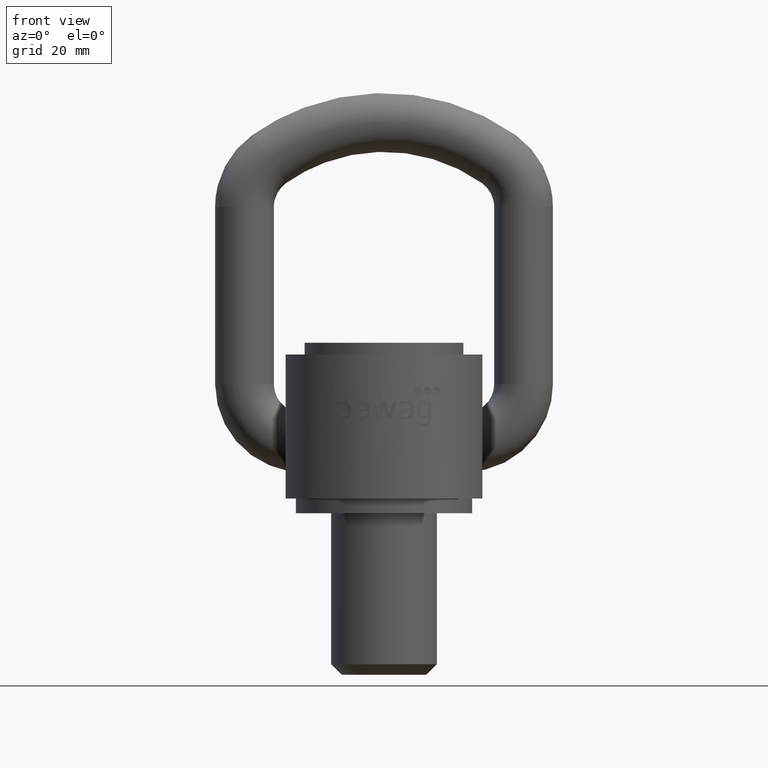
[diagram: clean part render]
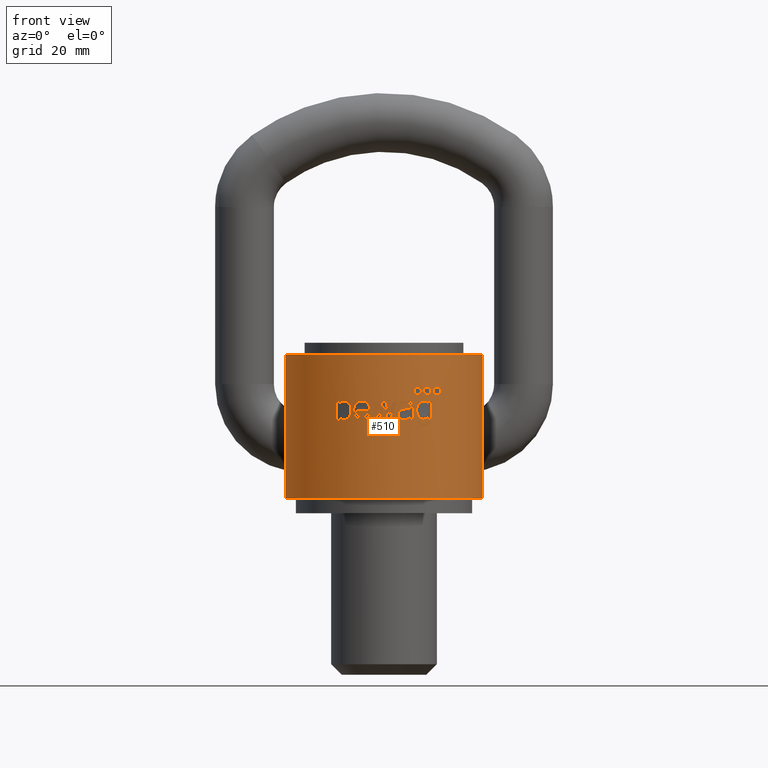
[diagram: same view with one face highlighted and labeled with its STEP entity id]
A machine part, front view. The second image highlights one B-rep face of the part: STEP entity #510.
In plain terms, the highlighted cylindrical surface (partial cylindrical patch) has radius 33.5 mm, axis along (0, -0, -1).
Its self-contained STEP definition (entity closure, byte-faithful):
#201=CYLINDRICAL_SURFACE('',#2291,33.5);
#220=ELLIPSE('',#2266,33.7599794439611,33.5);
#221=ELLIPSE('',#2267,110.108438392227,33.5);
#222=ELLIPSE('',#2269,129.276037275518,33.5);
#223=ELLIPSE('',#2271,131.699154267883,33.5);
#224=ELLIPSE('',#2273,112.295195266052,33.5);
#225=ELLIPSE('',#2275,124.321019642032,33.5);
#226=ELLIPSE('',#2276,135.22408383125,33.5);
#227=ELLIPSE('',#2277,125.911673007627,33.5);
#228=ELLIPSE('',#2279,132.374376589537,33.5);
#229=ELLIPSE('',#2281,116.60992528485,33.5);
#230=ELLIPSE('',#2284,33.8789458737173,33.5);
#231=ELLIPSE('',#2285,33.7870057509765,33.5);
#232=ELLIPSE('',#2286,33.9618190918345,33.5);
#233=FACE_BOUND('',#783,.T.);
#234=FACE_BOUND('',#784,.T.);
#235=FACE_BOUND('',#785,.T.);
#236=FACE_BOUND('',#786,.T.);
#237=FACE_BOUND('',#787,.T.);
#238=FACE_BOUND('',#788,.T.);
#239=FACE_BOUND('',#789,.T.);
#240=FACE_BOUND('',#790,.T.);
#241=FACE_BOUND('',#791,.T.);
#292=CIRCLE('',#2261,33.5);
#293=CIRCLE('',#2262,33.5);
#294=CIRCLE('',#2263,33.5);
#295=CIRCLE('',#2264,33.5);
#296=CIRCLE('',#2265,33.5);
#297=CIRCLE('',#2268,33.5);
#298=CIRCLE('',#2270,33.5);
#299=CIRCLE('',#2272,33.5);
#300=CIRCLE('',#2274,33.5);
#301=CIRCLE('',#2278,33.5);
#302=CIRCLE('',#2280,33.5);
#303=CIRCLE('',#2282,33.5);
#304=CIRCLE('',#2283,33.5);
#305=CIRCLE('',#2287,33.5);
#306=CIRCLE('',#2288,33.5);
#307=CIRCLE('',#2289,33.5);
#308=CIRCLE('',#2290,33.5);
#329=B_SPLINE_CURVE_WITH_KNOTS('',3,(#2831,#2832,#2833,#2834,#2835,#2836,
#2837,#2838,#2839,#2840),.UNSPECIFIED.,.F.,.F.,(4,3,3,4),(0.,0.391657797747259,
0.694208532104582,1.),.UNSPECIFIED.);
#330=B_SPLINE_CURVE_WITH_KNOTS('',3,(#2843,#2844,#2845,#2846,#2847,#2848,
#2849,#2850,#2851,#2852),.UNSPECIFIED.,.F.,.F.,(4,3,3,4),(0.,0.352238037569743,
0.70583731124073,1.),.UNSPECIFIED.);
#331=B_SPLINE_CURVE_WITH_KNOTS('',3,(#2854,#2855,#2856,#2857,#2858,#2859,
#2860,#2861,#2862,#2863),.UNSPECIFIED.,.F.,.F.,(4,2,2,2,4),(0.,0.25,0.5,
0.75,1.),.UNSPECIFIED.);
#332=B_SPLINE_CURVE_WITH_KNOTS('',3,(#2881,#2882,#2883,#2884,#2885,#2886,
#2887,#2888,#2889,#2890),.UNSPECIFIED.,.F.,.F.,(4,3,3,4),(0.,0.247240170800061,
0.663841143719332,1.),.UNSPECIFIED.);
#333=B_SPLINE_CURVE_WITH_KNOTS('',3,(#2892,#2893,#2894,#2895,#2896,#2897,
#2898,#2899,#2900,#2901,#2902,#2903,#2904,#2905,#2906,#2907),
 .UNSPECIFIED.,.F.,.F.,(4,3,3,3,3,4),(0.,0.198766169573319,0.395634693446507,
0.634969042155868,0.906976755550927,1.),.UNSPECIFIED.);
#334=B_SPLINE_CURVE_WITH_KNOTS('',3,(#2909,#2910,#2911,#2912,#2913,#2914,
#2915,#2916,#2917,#2918),.UNSPECIFIED.,.F.,.F.,(4,3,3,4),(0.,0.291582744666698,
0.583827807706839,1.),.UNSPECIFIED.);
#335=B_SPLINE_CURVE_WITH_KNOTS('',3,(#2922,#2923,#2924,#2925,#2926,#2927,
#2928,#2929,#2930,#2931),.UNSPECIFIED.,.F.,.F.,(4,3,3,4),(0.,0.279743626133182,
0.746666449623421,1.),.UNSPECIFIED.);
#336=B_SPLINE_CURVE_WITH_KNOTS('',3,(#2933,#2934,#2935,#2936,#2937,#2938,
#2939,#2940,#2941,#2942,#2943,#2944,#2945,#2946,#2947,#2948),
 .UNSPECIFIED.,.F.,.F.,(4,3,3,3,3,4),(0.,0.20386227209856,0.406656114901392,
0.720007632425513,0.924503863407848,1.),.UNSPECIFIED.);
#337=B_SPLINE_CURVE_WITH_KNOTS('',3,(#2950,#2951,#2952,#2953,#2954,#2955,
#2956,#2957,#2958,#2959),.UNSPECIFIED.,.F.,.F.,(4,2,2,2,4),(0.,0.25,0.5,
0.75,1.),.UNSPECIFIED.);
#338=B_SPLINE_CURVE_WITH_KNOTS('',3,(#2961,#2962,#2963,#2964,#2965,#2966,
#2967,#2968,#2969,#2970),.UNSPECIFIED.,.F.,.F.,(4,3,3,4),(0.,0.32676204875143,
0.655781069521513,1.),.UNSPECIFIED.);
#339=B_SPLINE_CURVE_WITH_KNOTS('',3,(#2978,#2979,#2980,#2981,#2982,#2983,
#2984,#2985,#2986,#2987,#2988,#2989,#2990,#2991,#2992,#2993,#2994,#2995,
#2996,#2997,#2998,#2999,#3000,#3001,#3002,#3003,#3004,#3005,#3006,#3007,
#3008,#3009,#3010,#3011,#3012,#3013,#3014,#3015,#3016,#3017,#3018,#3019,
#3020,#3021,#3022,#3023,#3024,#3025,#3026,#3027,#3028,#3029,#3030,#3031,
#3032,#3033,#3034,#3035,#3036,#3037,#3038,#3039,#3040,#3041),
 .UNSPECIFIED.,.F.,.F.,(4,3,3,3,3,3,3,3,3,3,3,3,3,3,3,3,3,3,3,3,3,4),(0.,
0.499553315865375,0.749371457656815,0.834029702780407,0.889946163446055,
0.926899980439058,0.951339488323852,0.967517620448349,0.978239998191339,
0.985357925993554,0.99009333752119,0.99325301192085,0.995369807568963,0.996795785622416,
0.997763616137866,0.998427273364823,0.998888982341696,0.999371387660002,
0.99959004119786,0.999773233085356,0.99990855433107,1.),.UNSPECIFIED.);
#340=B_SPLINE_CURVE_WITH_KNOTS('',3,(#3043,#3044,#3045,#3046,#3047,#3048,
#3049,#3050,#3051,#3052),.UNSPECIFIED.,.F.,.F.,(4,3,3,4),(0.,0.133710786362343,
0.662259428205479,1.),.UNSPECIFIED.);
#341=B_SPLINE_CURVE_WITH_KNOTS('',3,(#3074,#3075,#3076,#3077,#3078,#3079,
#3080,#3081,#3082,#3083),.UNSPECIFIED.,.F.,.F.,(4,3,3,4),(0.,0.284451124598541,
0.642221045653096,1.),.UNSPECIFIED.);
#342=B_SPLINE_CURVE_WITH_KNOTS('',3,(#3093,#3094,#3095,#3096,#3097,#3098,
#3099,#3100,#3101,#3102),.UNSPECIFIED.,.F.,.F.,(4,3,3,4),(0.,0.298107772476766,
0.596459384136451,1.),.UNSPECIFIED.);
#343=B_SPLINE_CURVE_WITH_KNOTS('',3,(#3104,#3105,#3106,#3107,#3108,#3109,
#3110,#3111,#3112,#3113,#3114,#3115,#3116,#3117,#3118,#3119,#3120,#3121,
#3122,#3123,#3124,#3125,#3126,#3127,#3128,#3129,#3130,#3131,#3132,#3133,
#3134),.UNSPECIFIED.,.F.,.F.,(4,3,3,3,3,3,3,3,3,3,4),(0.,0.0780122411292501,
0.156314956137166,0.252221628366494,0.327487061807228,0.402822724376746,
0.479618288086876,0.589759700126473,0.751045473062599,0.909884427350629,
1.),.UNSPECIFIED.);
#344=B_SPLINE_CURVE_WITH_KNOTS('',3,(#3136,#3137,#3138,#3139,#3140,#3141,
#3142,#3143,#3144,#3145),.UNSPECIFIED.,.F.,.F.,(4,3,3,4),(0.,0.336609162967311,
0.6588533505525,1.),.UNSPECIFIED.);
#345=B_SPLINE_CURVE_WITH_KNOTS('',3,(#3149,#3150,#3151,#3152,#3153,#3154,
#3155,#3156,#3157,#3158),.UNSPECIFIED.,.F.,.F.,(4,3,3,4),(0.,0.296612768272998,
0.593035536686834,1.),.UNSPECIFIED.);
#346=B_SPLINE_CURVE_WITH_KNOTS('',3,(#3160,#3161,#3162,#3163,#3164,#3165,
#3166,#3167,#3168,#3169),.UNSPECIFIED.,.F.,.F.,(4,3,3,4),(0.,0.354196373045445,
0.676989757518094,1.),.UNSPECIFIED.);
#347=B_SPLINE_CURVE_WITH_KNOTS('',3,(#3171,#3172,#3173,#3174,#3175,#3176,
#3177,#3178,#3179,#3180),.UNSPECIFIED.,.F.,.F.,(4,3,3,4),(0.,0.284062316983218,
0.568435846295787,1.),.UNSPECIFIED.);
#348=B_SPLINE_CURVE_WITH_KNOTS('',3,(#3182,#3183,#3184,#3185,#3186,#3187,
#3188,#3189,#3190,#3191),.UNSPECIFIED.,.F.,.F.,(4,3,3,4),(0.,0.294807138526089,
0.590298925498001,1.),.UNSPECIFIED.);
#349=B_SPLINE_CURVE_WITH_KNOTS('',3,(#3193,#3194,#3195,#3196,#3197,#3198,
#3199,#3200,#3201,#3202),.UNSPECIFIED.,.F.,.F.,(4,3,3,4),(0.,0.278855867610492,
0.735722394138984,1.),.UNSPECIFIED.);
#350=B_SPLINE_CURVE_WITH_KNOTS('',3,(#3204,#3205,#3206,#3207,#3208,#3209,
#3210,#3211,#3212,#3213),.UNSPECIFIED.,.F.,.F.,(4,3,3,4),(0.,0.324752376652628,
0.768673925460963,1.),.UNSPECIFIED.);
#351=B_SPLINE_CURVE_WITH_KNOTS('',3,(#3217,#3218,#3219,#3220,#3221,#3222,
#3223,#3224,#3225,#3226),.UNSPECIFIED.,.F.,.F.,(4,3,3,4),(0.,0.276746719904185,
0.659623398338826,1.),.UNSPECIFIED.);
#352=B_SPLINE_CURVE_WITH_KNOTS('',3,(#3228,#3229,#3230,#3231,#3232,#3233),
 .UNSPECIFIED.,.F.,.F.,(4,2,4),(0.,0.5,1.),.UNSPECIFIED.);
#353=B_SPLINE_CURVE_WITH_KNOTS('',3,(#3235,#3236,#3237,#3238,#3239,#3240,
#3241,#3242,#3243,#3244),.UNSPECIFIED.,.F.,.F.,(4,3,3,4),(0.,0.26045329019796,
0.651117404602273,1.),.UNSPECIFIED.);
#354=B_SPLINE_CURVE_WITH_KNOTS('',3,(#3246,#3247,#3248,#3249,#3250,#3251),
 .UNSPECIFIED.,.F.,.F.,(4,2,4),(0.,0.5,1.),.UNSPECIFIED.);
#355=B_SPLINE_CURVE_WITH_KNOTS('',3,(#3253,#3254,#3255,#3256,#3257,#3258,
#3259,#3260,#3261,#3262),.UNSPECIFIED.,.F.,.F.,(4,3,3,4),(0.,0.264702455054172,
0.529532191004681,1.),.UNSPECIFIED.);
#356=B_SPLINE_CURVE_WITH_KNOTS('',3,(#3263,#3264,#3265,#3266,#3267,#3268,
#3269,#3270,#3271,#3272),.UNSPECIFIED.,.F.,.F.,(4,3,3,4),(0.,0.14656707812562,
0.470503150225449,1.),.UNSPECIFIED.);
#357=B_SPLINE_CURVE_WITH_KNOTS('',3,(#3275,#3276,#3277,#3278,#3279,#3280,
#3281,#3282,#3283,#3284,#3285,#3286,#3287,#3288,#3289,#3290,#3291,#3292,
#3293),.UNSPECIFIED.,.F.,.F.,(4,3,3,3,3,3,4),(0.,0.191184255901725,0.449337348737339,
0.671797294418089,0.828129636679745,0.95788893086454,1.),.UNSPECIFIED.);
#358=B_SPLINE_CURVE_WITH_KNOTS('',3,(#3295,#3296,#3297,#3298,#3299,#3300,
#3301,#3302,#3303,#3304,#3305,#3306,#3307),.UNSPECIFIED.,.F.,.F.,(4,3,3,
3,4),(0.,0.401043475483823,0.633320924333608,0.866741825314161,1.),
 .UNSPECIFIED.);
#359=B_SPLINE_CURVE_WITH_KNOTS('',3,(#3311,#3312,#3313,#3314,#3315,#3316,
#3317,#3318,#3319,#3320),.UNSPECIFIED.,.F.,.F.,(4,3,3,4),(0.,0.256741034386105,
0.6147349225076,1.),.UNSPECIFIED.);
#360=B_SPLINE_CURVE_WITH_KNOTS('',3,(#3322,#3323,#3324,#3325,#3326,#3327,
#3328,#3329,#3330,#3331,#3332,#3333,#3334),.UNSPECIFIED.,.F.,.F.,(4,3,3,
3,4),(0.,0.199350171071168,0.498071015390817,0.843112996930344,1.),
 .UNSPECIFIED.);
#361=B_SPLINE_CURVE_WITH_KNOTS('',3,(#3336,#3337,#3338,#3339,#3340,#3341,
#3342,#3343,#3344,#3345,#3346,#3347,#3348),.UNSPECIFIED.,.F.,.F.,(4,3,3,
3,4),(0.,0.368966348729235,0.743470048428422,0.957910841717712,1.),
 .UNSPECIFIED.);
#362=B_SPLINE_CURVE_WITH_KNOTS('',3,(#3350,#3351,#3352,#3353,#3354,#3355,
#3356,#3357,#3358,#3359,#3360,#3361,#3362,#3363,#3364,#3365,#3366,#3367,
#3368,#3369,#3370,#3371,#3372,#3373,#3374,#3375,#3376,#3377,#3378,#3379,
#3380,#3381,#3382,#3383,#3384,#3385,#3386,#3387,#3388,#3389,#3390,#3391,
#3392,#3393,#3394,#3395),.UNSPECIFIED.,.F.,.F.,(4,3,3,3,3,3,3,3,3,3,3,3,
3,3,3,4),(0.,0.0693455366971768,0.131181607699288,0.203672485315908,0.260879031244551,
0.318211849546085,0.394648743714284,0.490824651035577,0.590098287636872,
0.666939584909722,0.731168834752819,0.796085378360969,0.866356182898293,
0.922400773229931,0.978520980008001,1.),.UNSPECIFIED.);
#363=B_SPLINE_CURVE_WITH_KNOTS('',3,(#3402,#3403,#3404,#3405,#3406,#3407,
#3408,#3409,#3410,#3411,#3412,#3413,#3414,#3415,#3416,#3417,#3418,#3419,
#3420,#3421,#3422,#3423,#3424,#3425,#3426,#3427,#3428,#3429,#3430,#3431,
#3432,#3433,#3434,#3435,#3436,#3437,#3438,#3439,#3440,#3441,#3442,#3443,
#3444,#3445,#3446,#3447,#3448,#3449,#3450,#3451,#3452,#3453,#3454,#3455,
#3456,#3457,#3458,#3459),.UNSPECIFIED.,.T.,.F.,(1,3,3,3,3,3,3,3,3,3,3,3,
3,3,3,3,3,3,3,3,3,1),(-0.0367073868415212,0.,0.0609914840100627,0.122231249399368,
0.179301292083766,0.230755369736955,0.27839112031494,0.324878189726589,
0.372681240418361,0.42379249121521,0.479527479500673,0.539959743675105,
0.60300420501567,0.664124531326776,0.718757726555893,0.766536662648824,
0.811206380762679,0.857057487616171,0.907225610016422,0.963292613158479,
1.,1.06099148401006),.UNSPECIFIED.);
#364=B_SPLINE_CURVE_WITH_KNOTS('',3,(#3469,#3470,#3471,#3472,#3473,#3474,
#3475,#3476,#3477,#3478,#3479,#3480,#3481,#3482,#3483,#3484,#3485,#3486,
#3487,#3488,#3489,#3490,#3491,#3492,#3493,#3494,#3495,#3496,#3497,#3498,
#3499,#3500,#3501,#3502,#3503,#3504,#3505,#3506,#3507,#3508,#3509,#3510,
#3511,#3512,#3513,#3514,#3515,#3516,#3517,#3518,#3519,#3520,#3521,#3522,
#3523,#3524,#3525,#3526),.UNSPECIFIED.,.T.,.F.,(1,3,3,3,3,3,3,3,3,3,3,3,
3,3,3,3,3,3,3,3,3,1),(-0.0367197482967921,0.,0.0576245706939536,0.115380338516386,
0.170999496159534,0.223565690324242,0.273920264410148,0.323453498183322,
0.373593188642526,0.425570256117129,0.480210313262632,0.537583476956383,
0.596550106951979,0.654679211305299,0.709389457177723,0.759995746809844,
0.808271178746388,0.856951409014799,0.908279432979369,0.963280251703208,
1.,1.05762457069395),.UNSPECIFIED.);
#365=B_SPLINE_CURVE_WITH_KNOTS('',3,(#3528,#3529,#3530,#3531,#3532,#3533,
#3534,#3535,#3536,#3537,#3538,#3539,#3540,#3541,#3542,#3543,#3544,#3545,
#3546,#3547,#3548,#3549,#3550,#3551,#3552,#3553,#3554,#3555,#3556,#3557,
#3558,#3559,#3560,#3561,#3562,#3563,#3564,#3565,#3566,#3567,#3568,#3569,
#3570,#3571,#3572,#3573,#3574,#3575,#3576,#3577,#3578,#3579,#3580,#3581,
#3582,#3583,#3584,#3585),.UNSPECIFIED.,.T.,.F.,(1,3,3,3,3,3,3,3,3,3,3,3,
3,3,3,3,3,3,3,3,3,1),(-0.0659954067426738,0.,0.0748415571720553,0.141559223989635,
0.189406139175087,0.237532672015929,0.28131226716205,0.32384785657725,0.368697963810667,
0.418673756299004,0.475805103754142,0.540469776596686,0.609516497803674,
0.662909236118806,0.70788995434645,0.753174917817905,0.793903464076124,
0.83477620696987,0.880423710865826,0.934004593257326,1.,1.07484155717206),
 .UNSPECIFIED.);
#510=ADVANCED_FACE('',(#233,#234,#235,#236,#237,#238,#239,#240,#241),#201,
 .T.);
#783=EDGE_LOOP('',(#962,#963,#964,#965,#966,#967,#968,#969,#970,#971));
#784=EDGE_LOOP('',(#972,#973,#974,#975,#976,#977,#978,#979,#980));
#785=EDGE_LOOP('',(#981,#982,#983,#984,#985,#986,#987,#988,#989,#990,#991,
#992,#993,#994,#995,#996,#997,#998,#999));
#786=EDGE_LOOP('',(#1000,#1001,#1002,#1003,#1004,#1005,#1006,#1007,#1008,
#1009,#1010,#1011,#1012,#1013,#1014,#1015,#1016));
#787=EDGE_LOOP('',(#1017,#1018,#1019,#1020,#1021,#1022,#1023,#1024,#1025,
#1026,#1027));
#788=EDGE_LOOP('',(#1028));
#789=EDGE_LOOP('',(#1029,#1030,#1031,#1032));
#790=EDGE_LOOP('',(#1033));
#791=EDGE_LOOP('',(#1034));
#962=ORIENTED_EDGE('',*,*,#1723,.F.);
#963=ORIENTED_EDGE('',*,*,#1724,.F.);
#964=ORIENTED_EDGE('',*,*,#1725,.F.);
#965=ORIENTED_EDGE('',*,*,#1726,.F.);
#966=ORIENTED_EDGE('',*,*,#1727,.F.);
#967=ORIENTED_EDGE('',*,*,#1728,.F.);
#968=ORIENTED_EDGE('',*,*,#1729,.F.);
#969=ORIENTED_EDGE('',*,*,#1730,.F.);
#970=ORIENTED_EDGE('',*,*,#1731,.F.);
#971=ORIENTED_EDGE('',*,*,#1732,.F.);
#972=ORIENTED_EDGE('',*,*,#1733,.F.);
#973=ORIENTED_EDGE('',*,*,#1734,.F.);
#974=ORIENTED_EDGE('',*,*,#1735,.F.);
#975=ORIENTED_EDGE('',*,*,#1736,.F.);
#976=ORIENTED_EDGE('',*,*,#1737,.F.);
#977=ORIENTED_EDGE('',*,*,#1738,.F.);
#978=ORIENTED_EDGE('',*,*,#1739,.F.);
#979=ORIENTED_EDGE('',*,*,#1740,.F.);
#980=ORIENTED_EDGE('',*,*,#1741,.F.);
#981=ORIENTED_EDGE('',*,*,#1742,.F.);
#982=ORIENTED_EDGE('',*,*,#1743,.F.);
#983=ORIENTED_EDGE('',*,*,#1744,.F.);
#984=ORIENTED_EDGE('',*,*,#1745,.F.);
#985=ORIENTED_EDGE('',*,*,#1746,.F.);
#986=ORIENTED_EDGE('',*,*,#1747,.F.);
#987=ORIENTED_EDGE('',*,*,#1748,.F.);
#988=ORIENTED_EDGE('',*,*,#1749,.F.);
#989=ORIENTED_EDGE('',*,*,#1750,.F.);
#990=ORIENTED_EDGE('',*,*,#1751,.F.);
#991=ORIENTED_EDGE('',*,*,#1752,.F.);
#992=ORIENTED_EDGE('',*,*,#1753,.F.);
#993=ORIENTED_EDGE('',*,*,#1754,.F.);
#994=ORIENTED_EDGE('',*,*,#1755,.F.);
#995=ORIENTED_EDGE('',*,*,#1756,.F.);
#996=ORIENTED_EDGE('',*,*,#1757,.F.);
#997=ORIENTED_EDGE('',*,*,#1758,.F.);
#998=ORIENTED_EDGE('',*,*,#1759,.F.);
#999=ORIENTED_EDGE('',*,*,#1760,.F.);
#1000=ORIENTED_EDGE('',*,*,#1761,.F.);
#1001=ORIENTED_EDGE('',*,*,#1762,.F.);
#1002=ORIENTED_EDGE('',*,*,#1763,.F.);
#1003=ORIENTED_EDGE('',*,*,#1764,.F.);
#1004=ORIENTED_EDGE('',*,*,#1765,.F.);
#1005=ORIENTED_EDGE('',*,*,#1766,.F.);
#1006=ORIENTED_EDGE('',*,*,#1767,.F.);
#1007=ORIENTED_EDGE('',*,*,#1768,.F.);
#1008=ORIENTED_EDGE('',*,*,#1769,.F.);
#1009=ORIENTED_EDGE('',*,*,#1770,.F.);
#1010=ORIENTED_EDGE('',*,*,#1771,.F.);
#1011=ORIENTED_EDGE('',*,*,#1772,.F.);
#1012=ORIENTED_EDGE('',*,*,#1773,.F.);
#1013=ORIENTED_EDGE('',*,*,#1774,.F.);
#1014=ORIENTED_EDGE('',*,*,#1775,.F.);
#1015=ORIENTED_EDGE('',*,*,#1776,.F.);
#1016=ORIENTED_EDGE('',*,*,#1777,.F.);
#1017=ORIENTED_EDGE('',*,*,#1778,.F.);
#1018=ORIENTED_EDGE('',*,*,#1779,.F.);
#1019=ORIENTED_EDGE('',*,*,#1780,.F.);
#1020=ORIENTED_EDGE('',*,*,#1781,.F.);
#1021=ORIENTED_EDGE('',*,*,#1782,.F.);
#1022=ORIENTED_EDGE('',*,*,#1783,.F.);
#1023=ORIENTED_EDGE('',*,*,#1784,.F.);
#1024=ORIENTED_EDGE('',*,*,#1785,.F.);
#1025=ORIENTED_EDGE('',*,*,#1786,.F.);
#1026=ORIENTED_EDGE('',*,*,#1787,.F.);
#1027=ORIENTED_EDGE('',*,*,#1788,.F.);
#1028=ORIENTED_EDGE('',*,*,#1789,.T.);
#1029=ORIENTED_EDGE('',*,*,#1790,.F.);
#1030=ORIENTED_EDGE('',*,*,#1791,.F.);
#1031=ORIENTED_EDGE('',*,*,#1792,.F.);
#1032=ORIENTED_EDGE('',*,*,#1793,.F.);
#1033=ORIENTED_EDGE('',*,*,#1794,.T.);
#1034=ORIENTED_EDGE('',*,*,#1795,.T.);
#1518=VERTEX_POINT('',#2841);
#1519=VERTEX_POINT('',#2842);
#1520=VERTEX_POINT('',#2853);
#1521=VERTEX_POINT('',#2864);
#1522=VERTEX_POINT('',#2866);
#1523=VERTEX_POINT('',#2868);
#1524=VERTEX_POINT('',#2870);
#1525=VERTEX_POINT('',#2872);
#1526=VERTEX_POINT('',#2874);
#1527=VERTEX_POINT('',#2876);
#1528=VERTEX_POINT('',#2879);
#1529=VERTEX_POINT('',#2880);
#1530=VERTEX_POINT('',#2891);
#1531=VERTEX_POINT('',#2908);
#1532=VERTEX_POINT('',#2919);
#1533=VERTEX_POINT('',#2921);
#1534=VERTEX_POINT('',#2932);
#1535=VERTEX_POINT('',#2949);
#1536=VERTEX_POINT('',#2960);
#1537=VERTEX_POINT('',#2972);
#1538=VERTEX_POINT('',#2973);
#1539=VERTEX_POINT('',#2975);
#1540=VERTEX_POINT('',#2977);
#1541=VERTEX_POINT('',#3042);
#1542=VERTEX_POINT('',#3053);
#1543=VERTEX_POINT('',#3055);
#1544=VERTEX_POINT('',#3057);
#1545=VERTEX_POINT('',#3059);
#1546=VERTEX_POINT('',#3061);
#1547=VERTEX_POINT('',#3063);
#1548=VERTEX_POINT('',#3065);
#1549=VERTEX_POINT('',#3067);
#1550=VERTEX_POINT('',#3069);
#1551=VERTEX_POINT('',#3071);
#1552=VERTEX_POINT('',#3073);
#1553=VERTEX_POINT('',#3084);
#1554=VERTEX_POINT('',#3086);
#1555=VERTEX_POINT('',#3088);
#1556=VERTEX_POINT('',#3091);
#1557=VERTEX_POINT('',#3092);
#1558=VERTEX_POINT('',#3103);
#1559=VERTEX_POINT('',#3135);
#1560=VERTEX_POINT('',#3146);
#1561=VERTEX_POINT('',#3148);
#1562=VERTEX_POINT('',#3159);
#1563=VERTEX_POINT('',#3170);
#1564=VERTEX_POINT('',#3181);
#1565=VERTEX_POINT('',#3192);
#1566=VERTEX_POINT('',#3203);
#1567=VERTEX_POINT('',#3214);
#1568=VERTEX_POINT('',#3216);
#1569=VERTEX_POINT('',#3227);
#1570=VERTEX_POINT('',#3234);
#1571=VERTEX_POINT('',#3245);
#1572=VERTEX_POINT('',#3252);
#1573=VERTEX_POINT('',#3273);
#1574=VERTEX_POINT('',#3274);
#1575=VERTEX_POINT('',#3294);
#1576=VERTEX_POINT('',#3308);
#1577=VERTEX_POINT('',#3310);
#1578=VERTEX_POINT('',#3321);
#1579=VERTEX_POINT('',#3335);
#1580=VERTEX_POINT('',#3349);
#1581=VERTEX_POINT('',#3396);
#1582=VERTEX_POINT('',#3398);
#1583=VERTEX_POINT('',#3400);
#1584=VERTEX_POINT('',#3460);
#1585=VERTEX_POINT('',#3462);
#1586=VERTEX_POINT('',#3463);
#1587=VERTEX_POINT('',#3465);
#1588=VERTEX_POINT('',#3467);
#1589=VERTEX_POINT('',#3527);
#1590=VERTEX_POINT('',#3586);
#1723=EDGE_CURVE('',#1518,#1519,#329,.T.);
#1724=EDGE_CURVE('',#1520,#1518,#330,.T.);
#1725=EDGE_CURVE('',#1521,#1520,#331,.T.);
#1726=EDGE_CURVE('',#1522,#1521,#292,.T.);
#1727=EDGE_CURVE('',#1523,#1522,#2010,.T.);
#1728=EDGE_CURVE('',#1524,#1523,#293,.T.);
#1729=EDGE_CURVE('',#1525,#1524,#2011,.T.);
#1730=EDGE_CURVE('',#1526,#1525,#294,.T.);
#1731=EDGE_CURVE('',#1527,#1526,#2012,.T.);
#1732=EDGE_CURVE('',#1519,#1527,#295,.T.);
#1733=EDGE_CURVE('',#1528,#1529,#296,.T.);
#1734=EDGE_CURVE('',#1530,#1528,#332,.T.);
#1735=EDGE_CURVE('',#1531,#1530,#333,.T.);
#1736=EDGE_CURVE('',#1532,#1531,#334,.T.);
#1737=EDGE_CURVE('',#1533,#1532,#220,.T.);
#1738=EDGE_CURVE('',#1534,#1533,#335,.T.);
#1739=EDGE_CURVE('',#1535,#1534,#336,.T.);
#1740=EDGE_CURVE('',#1536,#1535,#337,.T.);
#1741=EDGE_CURVE('',#1529,#1536,#338,.T.);
#1742=EDGE_CURVE('',#1537,#1538,#221,.T.);
#1743=EDGE_CURVE('',#1539,#1537,#297,.T.);
#1744=EDGE_CURVE('',#1540,#1539,#222,.T.);
#1745=EDGE_CURVE('',#1541,#1540,#339,.T.);
#1746=EDGE_CURVE('',#1542,#1541,#340,.T.);
#1747=EDGE_CURVE('',#1543,#1542,#298,.T.);
#1748=EDGE_CURVE('',#1544,#1543,#223,.T.);
#1749=EDGE_CURVE('',#1545,#1544,#299,.T.);
#1750=EDGE_CURVE('',#1546,#1545,#224,.T.);
#1751=EDGE_CURVE('',#1547,#1546,#300,.T.);
#1752=EDGE_CURVE('',#1548,#1547,#225,.T.);
#1753=EDGE_CURVE('',#1549,#1548,#226,.T.);
#1754=EDGE_CURVE('',#1550,#1549,#227,.T.);
#1755=EDGE_CURVE('',#1551,#1550,#301,.T.);
#1756=EDGE_CURVE('',#1552,#1551,#228,.T.);
#1757=EDGE_CURVE('',#1553,#1552,#341,.T.);
#1758=EDGE_CURVE('',#1554,#1553,#302,.T.);
#1759=EDGE_CURVE('',#1555,#1554,#229,.T.);
#1760=EDGE_CURVE('',#1538,#1555,#303,.T.);
#1761=EDGE_CURVE('',#1556,#1557,#304,.T.);
#1762=EDGE_CURVE('',#1558,#1556,#342,.T.);
#1763=EDGE_CURVE('',#1559,#1558,#343,.T.);
#1764=EDGE_CURVE('',#1560,#1559,#344,.T.);
#1765=EDGE_CURVE('',#1561,#1560,#230,.T.);
#1766=EDGE_CURVE('',#1562,#1561,#345,.T.);
#1767=EDGE_CURVE('',#1563,#1562,#346,.T.);
#1768=EDGE_CURVE('',#1564,#1563,#347,.T.);
#1769=EDGE_CURVE('',#1565,#1564,#348,.T.);
#1770=EDGE_CURVE('',#1566,#1565,#349,.T.);
#1771=EDGE_CURVE('',#1567,#1566,#350,.T.);
#1772=EDGE_CURVE('',#1568,#1567,#231,.T.);
#1773=EDGE_CURVE('',#1569,#1568,#351,.T.);
#1774=EDGE_CURVE('',#1570,#1569,#352,.T.);
#1775=EDGE_CURVE('',#1571,#1570,#353,.T.);
#1776=EDGE_CURVE('',#1572,#1571,#354,.T.);
#1777=EDGE_CURVE('',#1557,#1572,#355,.T.);
#1778=EDGE_CURVE('',#1573,#1574,#356,.T.);
#1779=EDGE_CURVE('',#1575,#1573,#357,.T.);
#1780=EDGE_CURVE('',#1576,#1575,#358,.T.);
#1781=EDGE_CURVE('',#1577,#1576,#232,.T.);
#1782=EDGE_CURVE('',#1578,#1577,#359,.T.);
#1783=EDGE_CURVE('',#1579,#1578,#360,.T.);
#1784=EDGE_CURVE('',#1580,#1579,#361,.T.);
#1785=EDGE_CURVE('',#1581,#1580,#362,.T.);
#1786=EDGE_CURVE('',#1582,#1581,#305,.T.);
#1787=EDGE_CURVE('',#1583,#1582,#2013,.T.);
#1788=EDGE_CURVE('',#1574,#1583,#306,.T.);
#1789=EDGE_CURVE('',#1584,#1584,#363,.T.);
#1790=EDGE_CURVE('',#1585,#1586,#307,.T.);
#1791=EDGE_CURVE('',#1587,#1585,#2014,.T.);
#1792=EDGE_CURVE('',#1588,#1587,#308,.T.);
#1793=EDGE_CURVE('',#1586,#1588,#2015,.T.);
#1794=EDGE_CURVE('',#1589,#1589,#364,.T.);
#1795=EDGE_CURVE('',#1590,#1590,#365,.T.);
#2010=LINE('',#2867,#2118);
#2011=LINE('',#2871,#2119);
#2012=LINE('',#2875,#2120);
#2013=LINE('',#3399,#2121);
#2014=LINE('',#3464,#2122);
#2015=LINE('',#3468,#2123);
#2118=VECTOR('',#2418,1.);
#2119=VECTOR('',#2421,1.);
#2120=VECTOR('',#2424,1.);
#2121=VECTOR('',#2473,1.);
#2122=VECTOR('',#2478,1.);
#2123=VECTOR('',#2481,1.);
#2261=AXIS2_PLACEMENT_3D('',#2865,#2416,#2417);
#2262=AXIS2_PLACEMENT_3D('',#2869,#2419,#2420);
#2263=AXIS2_PLACEMENT_3D('',#2873,#2422,#2423);
#2264=AXIS2_PLACEMENT_3D('',#2877,#2425,#2426);
#2265=AXIS2_PLACEMENT_3D('',#2878,#2427,#2428);
#2266=AXIS2_PLACEMENT_3D('',#2920,#2429,#2430);
#2267=AXIS2_PLACEMENT_3D('',#2971,#2431,#2432);
#2268=AXIS2_PLACEMENT_3D('',#2974,#2433,#2434);
#2269=AXIS2_PLACEMENT_3D('',#2976,#2435,#2436);
#2270=AXIS2_PLACEMENT_3D('',#3054,#2437,#2438);
#2271=AXIS2_PLACEMENT_3D('',#3056,#2439,#2440);
#2272=AXIS2_PLACEMENT_3D('',#3058,#2441,#2442);
#2273=AXIS2_PLACEMENT_3D('',#3060,#2443,#2444);
#2274=AXIS2_PLACEMENT_3D('',#3062,#2445,#2446);
#2275=AXIS2_PLACEMENT_3D('',#3064,#2447,#2448);
#2276=AXIS2_PLACEMENT_3D('',#3066,#2449,#2450);
#2277=AXIS2_PLACEMENT_3D('',#3068,#2451,#2452);
#2278=AXIS2_PLACEMENT_3D('',#3070,#2453,#2454);
#2279=AXIS2_PLACEMENT_3D('',#3072,#2455,#2456);
#2280=AXIS2_PLACEMENT_3D('',#3085,#2457,#2458);
#2281=AXIS2_PLACEMENT_3D('',#3087,#2459,#2460);
#2282=AXIS2_PLACEMENT_3D('',#3089,#2461,#2462);
#2283=AXIS2_PLACEMENT_3D('',#3090,#2463,#2464);
#2284=AXIS2_PLACEMENT_3D('',#3147,#2465,#2466);
#2285=AXIS2_PLACEMENT_3D('',#3215,#2467,#2468);
#2286=AXIS2_PLACEMENT_3D('',#3309,#2469,#2470);
#2287=AXIS2_PLACEMENT_3D('',#3397,#2471,#2472);
#2288=AXIS2_PLACEMENT_3D('',#3401,#2474,#2475);
#2289=AXIS2_PLACEMENT_3D('',#3461,#2476,#2477);
#2290=AXIS2_PLACEMENT_3D('',#3466,#2479,#2480);
#2291=AXIS2_PLACEMENT_3D('',#3587,#2482,#2483);
#2416=DIRECTION('',(0.,0.,1.));
#2417=DIRECTION('',(-1.,0.,0.));
#2418=DIRECTION('',(0.,1.41610079671576E-16,1.));
#2419=DIRECTION('',(0.,0.,1.));
#2420=DIRECTION('',(-1.,0.,0.));
#2421=DIRECTION('',(0.,-1.41610079671576E-16,-1.));
#2422=DIRECTION('',(0.,0.,-1.));
#2423=DIRECTION('',(1.,0.,0.));
#2424=DIRECTION('',(0.,1.41610079671576E-16,1.));
#2425=DIRECTION('',(0.,0.,-1.));
#2426=DIRECTION('',(1.,0.,0.));
#2427=DIRECTION('',(0.,0.,1.));
#2428=DIRECTION('',(-1.,0.,0.));
#2429=DIRECTION('',(-0.12386417001373,2.46519032881566E-31,-0.992299182397533));
#2430=DIRECTION('',(0.992299182397532,-1.14326911209173E-15,-0.12386417001373));
#2431=DIRECTION('',(-0.952593648183112,0.,0.304245528218887));
#2432=DIRECTION('',(-0.304245528218887,-1.4865738391356E-16,-0.952593648183112));
#2433=DIRECTION('',(0.,0.,1.));
#2434=DIRECTION('',(-1.,0.,0.));
#2435=DIRECTION('',(0.965840998800877,0.,0.259135418334362));
#2436=DIRECTION('',(0.259135418334362,-1.46618418401569E-16,-0.965840998800877));
#2437=DIRECTION('',(0.,0.,1.));
#2438=DIRECTION('',(-1.,0.,0.));
#2439=DIRECTION('',(-0.96710760287855,0.,0.254367616756743));
#2440=DIRECTION('',(-0.254367616756743,-1.46426394798345E-16,-0.96710760287855));
#2441=DIRECTION('',(0.,0.,1.));
#2442=DIRECTION('',(-1.,0.,0.));
#2443=DIRECTION('',(0.954465641275027,0.,0.298320866895784));
#2444=DIRECTION('',(0.298320866895784,-1.48365822244168E-16,-0.954465641275027));
#2445=DIRECTION('',(0.,0.,-1.));
#2446=DIRECTION('',(1.,0.,0.));
#2447=DIRECTION('',(-0.963010551756507,0.,-0.269463684391098));
#2448=DIRECTION('',(0.269463684391098,-1.47049354145998E-16,-0.963010551756508));
#2449=DIRECTION('',(0.968827338219047,0.,-0.24773693450795));
#2450=DIRECTION('',(-0.24773693450795,-1.46166477849285E-16,-0.968827338219047));
#2451=DIRECTION('',(0.963956601090742,6.16297582203915E-33,-0.266059525696008));
#2452=DIRECTION('',(-0.266059525696007,-1.46905036504071E-16,-0.963956601090742));
#2453=DIRECTION('',(0.,0.,-1.));
#2454=DIRECTION('',(1.,0.,0.));
#2455=DIRECTION('',(-0.967447937590639,0.,-0.25307012477102));
#2456=DIRECTION('',(0.25307012477102,-1.4637488403174E-16,-0.967447937590639));
#2457=DIRECTION('',(0.,0.,-1.));
#2458=DIRECTION('',(1.,0.,0.));
#2459=DIRECTION('',(0.957845874951683,0.,-0.287282578375447));
#2460=DIRECTION('',(-0.287282578375447,-1.47842239941493E-16,-0.957845874951683));
#2461=DIRECTION('',(0.,0.,-1.));
#2462=DIRECTION('',(1.,0.,0.));
#2463=DIRECTION('',(0.,0.,1.));
#2464=DIRECTION('',(-1.,0.,0.));
#2465=DIRECTION('',(0.149149158822097,0.,-0.988814708842188));
#2466=DIRECTION('',(-0.988814708842188,-9.49452754477056E-16,-0.149149158822097));
#2467=DIRECTION('',(0.130065224599899,0.,0.991505439899236));
#2468=DIRECTION('',(0.991505439899236,-1.08876204309945E-15,-0.130065224599899));
#2469=DIRECTION('',(-0.164351632031854,0.,-0.986401815209434));
#2470=DIRECTION('',(0.986401815209434,-8.61628679440981E-16,-0.164351632031853));
#2471=DIRECTION('',(0.,0.,-1.));
#2472=DIRECTION('',(1.,0.,0.));
#2473=DIRECTION('',(0.,-1.41610079671576E-16,-1.));
#2474=DIRECTION('',(0.,0.,-1.));
#2475=DIRECTION('',(1.,0.,0.));
#2476=DIRECTION('',(0.,8.81976988155329E-17,-1.));
#2477=DIRECTION('',(0.,-1.,-8.81976988155329E-17));
#2478=DIRECTION('',(0.,-1.41610079671576E-16,-1.));
#2479=DIRECTION('',(0.,9.190587952195E-17,1.));
#2480=DIRECTION('',(0.,1.,0.));
#2481=DIRECTION('',(0.,1.41610079671576E-16,1.));
#2482=DIRECTION('',(0.,-1.41610079671576E-16,-1.));
#2483=DIRECTION('',(0.,1.,-2.07131161310664E-16));
#2831=CARTESIAN_POINT('',(-13.6072697025907,-40.1119618979404,33.1982284471732));
#2832=CARTESIAN_POINT('',(-13.855391733724,-40.0016696073633,33.1982284471732));
#2833=CARTESIAN_POINT('',(-14.1071718394546,-39.8859004911685,33.1596776307612));
#2834=CARTESIAN_POINT('',(-14.3380265677269,-39.7765750068128,33.067574619957));
#2835=CARTESIAN_POINT('',(-14.5169131469089,-39.6918599911829,32.9962050939419));
#2836=CARTESIAN_POINT('',(-14.6867379473553,-39.6094054386889,32.8903576687396));
#2837=CARTESIAN_POINT('',(-14.8328848878716,-39.5372356568169,32.7573041242903));
#2838=CARTESIAN_POINT('',(-14.9808420796856,-39.4641719428459,32.6226025100924));
#2839=CARTESIAN_POINT('',(-15.1082172514582,-39.3999210669376,32.4576095568448));
#2840=CARTESIAN_POINT('',(-15.2117693162579,-39.3471451611197,32.2790995139422));
#2841=CARTESIAN_POINT('',(-13.6072697025907,-40.1119618979404,33.1982284471732));
#2842=CARTESIAN_POINT('',(-15.2117693162579,-39.3471451611197,32.2790995139422));
#2843=CARTESIAN_POINT('',(-11.8597948758243,-40.830420768055,32.3326618060885));
#2844=CARTESIAN_POINT('',(-12.0064334673528,-40.7749123014027,32.5296942293135));
#2845=CARTESIAN_POINT('',(-12.1829211087277,-40.7069139416115,32.7061965853967));
#2846=CARTESIAN_POINT('',(-12.3801334107528,-40.6284804757952,32.8417006132609));
#2847=CARTESIAN_POINT('',(-12.5779241928867,-40.549816942182,32.9776021132095));
#2848=CARTESIAN_POINT('',(-12.8011742777936,-40.4586913511554,33.0749620694854));
#2849=CARTESIAN_POINT('',(-13.0280286314935,-40.3629303530462,33.1310450094441));
#2850=CARTESIAN_POINT('',(-13.2181154230427,-40.2826898789745,33.1780382716121));
#2851=CARTESIAN_POINT('',(-13.4139002526123,-40.197916214324,33.1982284471732));
#2852=CARTESIAN_POINT('',(-13.6072697025907,-40.1119618979404,33.1982284471732));
#2853=CARTESIAN_POINT('',(-11.8597948758243,-40.830420768055,32.3326618060885));
#2854=CARTESIAN_POINT('',(-15.122409808071,-39.392519492287,27.6341775390125));
#2855=CARTESIAN_POINT('',(-14.7079372620755,-39.6021981611043,27.0428189155147));
#2856=CARTESIAN_POINT('',(-14.0026098640239,-39.9421545437231,26.7773912903772));
#2857=CARTESIAN_POINT('',(-12.6443796386879,-40.5309123265932,26.9878779470673));
#2858=CARTESIAN_POINT('',(-12.0304063461213,-40.7676659820232,27.4734347382327));
#2859=CARTESIAN_POINT('',(-11.3101323259974,-41.0353534875478,28.7424184870955));
#2860=CARTESIAN_POINT('',(-11.200859162834,-41.0720019081032,29.5160422781084));
#2861=CARTESIAN_POINT('',(-11.2450717939972,-41.0562816380314,30.9910347712693));
#2862=CARTESIAN_POINT('',(-11.422015844089,-40.996137326915,31.7416996566285));
#2863=CARTESIAN_POINT('',(-11.8597948758243,-40.830420768055,32.3326618060885));
#2864=CARTESIAN_POINT('',(-15.122409808071,-39.392519492287,27.6341775390125));
#2865=CARTESIAN_POINT('',(0.,-9.5,27.6341775390125));
#2866=CARTESIAN_POINT('',(-15.1482247771028,-39.3794458801091,27.6341775390125));
#2867=CARTESIAN_POINT('',(-15.1482247771028,-39.3794458801091,49.));
#2868=CARTESIAN_POINT('',(-15.1482247771028,-39.3794458801091,24.6689690457917));
#2869=CARTESIAN_POINT('',(0.,-9.5,24.6689690457917));
#2870=CARTESIAN_POINT('',(-16.1013928644299,-38.8767790580467,24.6689690457917));
#2871=CARTESIAN_POINT('',(-16.1013928644299,-38.8767790580467,49.));
#2872=CARTESIAN_POINT('',(-16.1013928644299,-38.8767790580467,33.0611089792786));
#2873=CARTESIAN_POINT('',(0.,-9.5,33.0611089792786));
#2874=CARTESIAN_POINT('',(-15.2336127515925,-39.3360024556662,33.0611089792786));
#2875=CARTESIAN_POINT('',(-15.2336127515925,-39.3360024556662,49.));
#2876=CARTESIAN_POINT('',(-15.2336127515925,-39.3360024556662,32.2790995139422));
#2877=CARTESIAN_POINT('',(0.,-9.5,32.2790995139422));
#2878=CARTESIAN_POINT('',(0.,-9.5,29.7702417498082));
#2879=CARTESIAN_POINT('',(-9.29184282754854,-41.6855815058255,29.7702417498082));
#2880=CARTESIAN_POINT('',(-4.78953838253463,-42.6558489875049,29.7702417498082));
#2881=CARTESIAN_POINT('',(-8.7226835863864,-41.8444707956674,28.2340752110514));
#2882=CARTESIAN_POINT('',(-8.81685275037769,-41.8190751777802,28.3326613101111));
#2883=CARTESIAN_POINT('',(-8.89944961505397,-41.7963606492212,28.4442110990001));
#2884=CARTESIAN_POINT('',(-8.96835586052063,-41.7772147676819,28.5630275639293));
#2885=CARTESIAN_POINT('',(-9.08365519740294,-41.7451783763426,28.7618405963948));
#2886=CARTESIAN_POINT('',(-9.16307883847904,-41.7225203556824,28.9847390432994));
#2887=CARTESIAN_POINT('',(-9.21424162969131,-41.7078833702195,29.2106040843873));
#2888=CARTESIAN_POINT('',(-9.25579758251669,-41.6959947718263,29.394058441938));
#2889=CARTESIAN_POINT('',(-9.27993086990554,-41.6890204381986,29.5821725702476));
#2890=CARTESIAN_POINT('',(-9.29184282754854,-41.6855815058255,29.7702417498082));
#2891=CARTESIAN_POINT('',(-8.7226835863864,-41.8444707956674,28.2340752110514));
#2892=CARTESIAN_POINT('',(-6.47790254941485,-42.3677163575488,28.0133985674086));
#2893=CARTESIAN_POINT('',(-6.60652034646068,-42.3423670589751,27.9118973471324));
#2894=CARTESIAN_POINT('',(-6.75543692406107,-42.3121782205175,27.8336639603149));
#2895=CARTESIAN_POINT('',(-6.91005032453733,-42.2795851790772,27.7834642350618));
#2896=CARTESIAN_POINT('',(-7.06385155138718,-42.2471633466561,27.7335282055348));
#2897=CARTESIAN_POINT('',(-7.22634436898063,-42.2117275470914,27.7091138519821));
#2898=CARTESIAN_POINT('',(-7.3871262323206,-42.1753785904274,27.703865479534));
#2899=CARTESIAN_POINT('',(-7.58223079438535,-42.1312700876144,27.6974967176179));
#2900=CARTESIAN_POINT('',(-7.78050779948062,-42.0845197782846,27.7173900921365));
#2901=CARTESIAN_POINT('',(-7.96792333396242,-42.038626242423,27.7705042342105));
#2902=CARTESIAN_POINT('',(-8.17927873874737,-41.9868704107847,27.8304030095648));
#2903=CARTESIAN_POINT('',(-8.38197657786327,-41.9349172077297,27.9366668221575));
#2904=CARTESIAN_POINT('',(-8.55326471866331,-41.8896845099249,28.0764953328408));
#2905=CARTESIAN_POINT('',(-8.61290502477478,-41.8739350719853,28.1251818043111));
#2906=CARTESIAN_POINT('',(-8.66948519856717,-41.8588173808129,28.1780440550682));
#2907=CARTESIAN_POINT('',(-8.7226835863864,-41.8444707956674,28.2340752110514));
#2908=CARTESIAN_POINT('',(-6.47790254941485,-42.3677163575488,28.0133985674086));
#2909=CARTESIAN_POINT('',(-5.87051619504033,-42.4816166917841,28.9539524174981));
#2910=CARTESIAN_POINT('',(-5.90565625053189,-42.475361987329,28.8486751203657));
#2911=CARTESIAN_POINT('',(-5.94634784721334,-42.4680645673847,28.7450312876731));
#2912=CARTESIAN_POINT('',(-5.99388014872656,-42.4594205161847,28.6449152809061));
#2913=CARTESIAN_POINT('',(-6.04147491761439,-42.4507651048956,28.5446677007901));
#2914=CARTESIAN_POINT('',(-6.09623726747875,-42.4407040707363,28.4474297576701));
#2915=CARTESIAN_POINT('',(-6.15912706641499,-42.4289409756791,28.3563459595849));
#2916=CARTESIAN_POINT('',(-6.24805940996645,-42.4123068056142,28.2275445361379));
#2917=CARTESIAN_POINT('',(-6.35542844752969,-42.3918547944335,28.1092781494762));
#2918=CARTESIAN_POINT('',(-6.47790254941485,-42.3677163575488,28.0133985674086));
#2919=CARTESIAN_POINT('',(-5.87051619504033,-42.4816166917841,28.9539524174981));
#2920=CARTESIAN_POINT('',(0.,-9.5,28.2211627216586));
#2921=CARTESIAN_POINT('',(-4.82351803872342,-42.6509226678551,28.8232604246611));
#2922=CARTESIAN_POINT('',(-5.75795858391499,-42.5014531944567,27.3663660782809));
#2923=CARTESIAN_POINT('',(-5.62684840039828,-42.5243287630619,27.4644807728941));
#2924=CARTESIAN_POINT('',(-5.50503718328865,-42.5447660361586,27.5771715557733));
#2925=CARTESIAN_POINT('',(-5.39693811349873,-42.5624115726465,27.7010379810565));
#2926=CARTESIAN_POINT('',(-5.21801132820015,-42.5916186613363,27.9060630689266));
#2927=CARTESIAN_POINT('',(-5.0740996720219,-42.6136678971739,28.1461488979184));
#2928=CARTESIAN_POINT('',(-4.96809777168365,-42.6295639049322,28.3979703609536));
#2929=CARTESIAN_POINT('',(-4.91003919201658,-42.6382703491553,28.5358961568766));
#2930=CARTESIAN_POINT('',(-4.86228145120887,-42.6452825225947,28.6785686396873));
#2931=CARTESIAN_POINT('',(-4.82351803872342,-42.6509226678551,28.8232604246611));
#2932=CARTESIAN_POINT('',(-5.75795858391499,-42.5014531944567,27.3663660782809));
#2933=CARTESIAN_POINT('',(-9.57217499110601,-41.6033248424466,27.6941673062164));
#2934=CARTESIAN_POINT('',(-9.38289060856153,-41.6597633341508,27.4856329878635));
#2935=CARTESIAN_POINT('',(-9.15549281401191,-41.7256503361944,27.3085351675136));
#2936=CARTESIAN_POINT('',(-8.90861231268078,-41.7937552270149,27.1784883118775));
#2937=CARTESIAN_POINT('',(-8.66236240606562,-41.8616861608641,27.0487736285254));
#2938=CARTESIAN_POINT('',(-8.39195871699035,-41.933079874067,26.9618590804193));
#2939=CARTESIAN_POINT('',(-8.11816269161882,-42.0014681901051,26.9124799139726));
#2940=CARTESIAN_POINT('',(-7.69715373296232,-42.106627107881,26.8365508663655));
#2941=CARTESIAN_POINT('',(-7.25448259614413,-42.2079590848369,26.8329497405096));
#2942=CARTESIAN_POINT('',(-6.82988104264572,-42.2963828027316,26.9101956362437));
#2943=CARTESIAN_POINT('',(-6.5516753667789,-42.3543194258948,26.9608083729462));
#2944=CARTESIAN_POINT('',(-6.27524377424162,-42.4079837090769,27.0531235975471));
#2945=CARTESIAN_POINT('',(-6.02624027734872,-42.453519206902,27.1918336421636));
#2946=CARTESIAN_POINT('',(-5.93318036456063,-42.470537158494,27.2436736557213));
#2947=CARTESIAN_POINT('',(-5.84330677441322,-42.4865619912359,27.302092572888));
#2948=CARTESIAN_POINT('',(-5.75795858391499,-42.5014531944567,27.3663660782809));
#2949=CARTESIAN_POINT('',(-9.57217499110601,-41.6033248424466,27.6941673062164));
#2950=CARTESIAN_POINT('',(-5.21428408489444,-42.591709558166,31.9148759273472));
#2951=CARTESIAN_POINT('',(-5.65620159151781,-42.5220763040251,32.6456215235906));
#2952=CARTESIAN_POINT('',(-6.44124517695866,-42.3858131152994,33.1178622912876));
#2953=CARTESIAN_POINT('',(-8.09367454848588,-42.0185912362034,33.2578387525693));
#2954=CARTESIAN_POINT('',(-8.97019808541252,-41.7819391646699,33.0038536585382));
#2955=CARTESIAN_POINT('',(-10.0850184546717,-41.4512198936428,31.7671095589845));
#2956=CARTESIAN_POINT('',(-10.324975572231,-41.3691853499169,30.8944295260058));
#2957=CARTESIAN_POINT('',(-10.3435607980368,-41.3631581211254,29.1900837351412));
#2958=CARTESIAN_POINT('',(-10.1406019565476,-41.4338382733895,28.3180030671764));
#2959=CARTESIAN_POINT('',(-9.57217499110601,-41.6033248424466,27.6941673062164));
#2960=CARTESIAN_POINT('',(-5.21428408489444,-42.591709558166,31.9148759273472));
#2961=CARTESIAN_POINT('',(-4.78953838253463,-42.6558489875049,29.7702417498082));
#2962=CARTESIAN_POINT('',(-4.78953838253463,-42.6558489875049,30.0114946134052));
#2963=CARTESIAN_POINT('',(-4.79822963986218,-42.6545998256835,30.2531126568728));
#2964=CARTESIAN_POINT('',(-4.82029731590169,-42.6513911289754,30.4933326937836));
#2965=CARTESIAN_POINT('',(-4.84249120301751,-42.6481640808532,30.7349266148022));
#2966=CARTESIAN_POINT('',(-4.87808684265412,-42.6429894428835,30.9763509082594));
#2967=CARTESIAN_POINT('',(-4.93643820346037,-42.634296097298,31.2117020280201));
#2968=CARTESIAN_POINT('',(-4.99714455382597,-42.6252518989164,31.4565516311438));
#2969=CARTESIAN_POINT('',(-5.08365557348638,-42.6122927851181,31.6998621849388));
#2970=CARTESIAN_POINT('',(-5.21428408489444,-42.591709558166,31.9148759273472));
#2971=CARTESIAN_POINT('',(0.,-9.5,19.8638632515974));
#2972=CARTESIAN_POINT('',(2.27918556732032,-42.9223774311421,27.));
#2973=CARTESIAN_POINT('',(4.21502180400954,-42.7337718471997,33.0611089792786));
#2974=CARTESIAN_POINT('',(0.,-9.5,27.));
#2975=CARTESIAN_POINT('',(1.19354767782569,-42.9787312176067,27.));
#2976=CARTESIAN_POINT('',(0.,-9.5,31.4485516054783));
#2977=CARTESIAN_POINT('',(0.216909576432928,-42.9992977573509,30.6400933742645));
#2978=CARTESIAN_POINT('',(0.0948298137588306,-42.999865780424,31.1307239703249));
#2979=CARTESIAN_POINT('',(0.113930796284603,-42.9998117102785,31.0486618772858));
#2980=CARTESIAN_POINT('',(0.133182581250659,-42.9997410272371,30.9666339665395));
#2981=CARTESIAN_POINT('',(0.152841773851379,-42.999651332397,30.8847038397721));
#2982=CARTESIAN_POINT('',(0.162673010613031,-42.9996064774923,30.8437319397291));
#2983=CARTESIAN_POINT('',(0.172597943665698,-42.9995569206933,30.8027817186964));
#2984=CARTESIAN_POINT('',(0.182792541878935,-42.9995012931034,30.7618987284168));
#2985=CARTESIAN_POINT('',(0.186247312328076,-42.9994824418892,30.7480442003877));
#2986=CARTESIAN_POINT('',(0.189734745581383,-42.9994628809696,30.7341976879031));
#2987=CARTESIAN_POINT('',(0.193282521983931,-42.9994424112805,30.7203666863225));
#2988=CARTESIAN_POINT('',(0.195625815700539,-42.9994288911235,30.711231358889));
#2989=CARTESIAN_POINT('',(0.197995007424349,-42.999414977289,30.7021025491624));
#2990=CARTESIAN_POINT('',(0.200412312820125,-42.9994005156044,30.6929865280437));
#2991=CARTESIAN_POINT('',(0.202009850940436,-42.9993909582301,30.6869619722435));
#2992=CARTESIAN_POINT('',(0.203628066853061,-42.9993811637659,30.6809427769795));
#2993=CARTESIAN_POINT('',(0.205284803631126,-42.9993710112503,30.6749342320514));
#2994=CARTESIAN_POINT('',(0.206380491248201,-42.9993642968551,30.6709604636402));
#2995=CARTESIAN_POINT('',(0.207492765272489,-42.9993574275581,30.6669911479718));
#2996=CARTESIAN_POINT('',(0.208635954876943,-42.999350307705,30.6630307845215));
#2997=CARTESIAN_POINT('',(0.209392708116251,-42.9993455946006,30.6604091565271));
#2998=CARTESIAN_POINT('',(0.21016280678153,-42.9993407730152,30.6577912616257));
#2999=CARTESIAN_POINT('',(0.21095774875994,-42.9993357669706,30.6551809602618));
#3000=CARTESIAN_POINT('',(0.211484612459461,-42.9993324491144,30.6534509308122));
#3001=CARTESIAN_POINT('',(0.212022236479092,-42.9993290512238,30.6517240601968));
#3002=CARTESIAN_POINT('',(0.212579834407925,-42.9993255128219,30.6500036909655));
#3003=CARTESIAN_POINT('',(0.212949989535947,-42.9993231638936,30.6488616431562));
#3004=CARTESIAN_POINT('',(0.213328834748416,-42.9993207537739,30.6477222944687));
#3005=CARTESIAN_POINT('',(0.213723740254859,-42.9993182342992,30.646588567505));
#3006=CARTESIAN_POINT('',(0.213986462888188,-42.9993165581438,30.6458343219234));
#3007=CARTESIAN_POINT('',(0.214256214967473,-42.9993148341015,30.6450824075485));
#3008=CARTESIAN_POINT('',(0.21453888034927,-42.9993130238341,30.6443354072849));
#3009=CARTESIAN_POINT('',(0.214727487135431,-42.999311815944,30.6438369758249));
#3010=CARTESIAN_POINT('',(0.214921791971864,-42.9993105699989,30.6433405825617));
#3011=CARTESIAN_POINT('',(0.215126482383511,-42.9993092555142,30.6428485378415));
#3012=CARTESIAN_POINT('',(0.21526361283149,-42.9993083748873,30.6425188970324));
#3013=CARTESIAN_POINT('',(0.215405376841706,-42.99930746368,30.6421910639689));
#3014=CARTESIAN_POINT('',(0.215555501392716,-42.9993064976847,30.6418671345254));
#3015=CARTESIAN_POINT('',(0.215656632435977,-42.9993058469443,30.6416489202338));
#3016=CARTESIAN_POINT('',(0.21576155046224,-42.9993051713885,30.6414323372723));
#3017=CARTESIAN_POINT('',(0.215873212633757,-42.9993044518251,30.6412193198314));
#3018=CARTESIAN_POINT('',(0.215948998606762,-42.9993039634519,30.6410747432589));
#3019=CARTESIAN_POINT('',(0.21602790376475,-42.9993034547274,30.6409316706397));
#3020=CARTESIAN_POINT('',(0.216112266654569,-42.9993029104816,30.6407919253567));
#3021=CARTESIAN_POINT('',(0.216170114290589,-42.9993025372922,30.640696102012));
#3022=CARTESIAN_POINT('',(0.216230561386043,-42.9993021471871,30.6406017035673));
#3023=CARTESIAN_POINT('',(0.216295442518,-42.9993017282682,30.6405104957559));
#3024=CARTESIAN_POINT('',(0.216340577746346,-42.9993014368428,30.6404470461015));
#3025=CARTESIAN_POINT('',(0.216387917832732,-42.9993011310925,30.6403849964199));
#3026=CARTESIAN_POINT('',(0.2164388698008,-42.999300801892,30.6403261158545));
#3027=CARTESIAN_POINT('',(0.216491959717243,-42.9993004588782,30.6402647646563));
#3028=CARTESIAN_POINT('',(0.216549179151463,-42.999300089065,30.6402058352197));
#3029=CARTESIAN_POINT('',(0.216614139663871,-42.9992996690155,30.6401572288229));
#3030=CARTESIAN_POINT('',(0.216643675210129,-42.9992994780319,30.6401351289898));
#3031=CARTESIAN_POINT('',(0.216675153176429,-42.9992992744493,30.6401150707574));
#3032=CARTESIAN_POINT('',(0.216708717620041,-42.9992990573192,30.64009976819));
#3033=CARTESIAN_POINT('',(0.216736735011376,-42.9992988760732,30.6400869946126));
#3034=CARTESIAN_POINT('',(0.216766838135593,-42.9992986812981,30.6400774114167));
#3035=CARTESIAN_POINT('',(0.216797448985766,-42.9992984831938,30.640074078557));
#3036=CARTESIAN_POINT('',(0.216820104187468,-42.9992983365761,30.6400716118955));
#3037=CARTESIAN_POINT('',(0.216843502200994,-42.9992981851269,30.6400726612862));
#3038=CARTESIAN_POINT('',(0.21686571810506,-42.9992980413069,30.6400777403612));
#3039=CARTESIAN_POINT('',(0.216880848200853,-42.9992979433586,30.6400811994547));
#3040=CARTESIAN_POINT('',(0.216895646859335,-42.9992978475455,30.6400865292981));
#3041=CARTESIAN_POINT('',(0.216909576432928,-42.9992977573509,30.6400933742645));
#3042=CARTESIAN_POINT('',(0.0948298137588306,-42.999865780424,31.1307239703249));
#3043=CARTESIAN_POINT('',(-0.0207099616291519,-42.9999935984694,31.6663468917882));
#3044=CARTESIAN_POINT('',(-0.0207099616291519,-42.9999935984694,31.6419265207167));
#3045=CARTESIAN_POINT('',(-0.0141673334509782,-42.9999973232658,31.6179204376781));
#3046=CARTESIAN_POINT('',(-0.00954433135587452,-42.9999986403841,31.5939416476093));
#3047=CARTESIAN_POINT('',(0.00873725758271665,-43.000003848908,31.4991179001257));
#3048=CARTESIAN_POINT('',(0.030536441301076,-42.9999931725885,31.4049948667931));
#3049=CARTESIAN_POINT('',(0.0523317748853311,-42.9999591251294,31.3109165914964));
#3050=CARTESIAN_POINT('',(0.0662598751430815,-42.999937367425,31.2507967660602));
#3051=CARTESIAN_POINT('',(0.0804611948243242,-42.9999064544215,31.1907400264783));
#3052=CARTESIAN_POINT('',(0.0948298137588306,-42.999865780424,31.1307239703249));
#3053=CARTESIAN_POINT('',(-0.0207099616291519,-42.9999935984694,31.6663468917882));
#3054=CARTESIAN_POINT('',(0.,-9.5,31.6663468917882));
#3055=CARTESIAN_POINT('',(-0.0446899150115637,-42.9999701912031,31.6663468917882));
#3056=CARTESIAN_POINT('',(0.,-9.5,31.8362582866848));
#3057=CARTESIAN_POINT('',(-1.27202752903863,-42.9758412286438,27.));
#3058=CARTESIAN_POINT('',(0.,-9.5,27.));
#3059=CARTESIAN_POINT('',(-2.36420540581937,-42.9164709806271,27.));
#3060=CARTESIAN_POINT('',(0.,-9.5,19.4358196855214));
#3061=CARTESIAN_POINT('',(-4.25862172302989,-42.7282130277892,33.0611089792786));
#3062=CARTESIAN_POINT('',(0.,-9.5,33.0611089792786));
#3063=CARTESIAN_POINT('',(-3.17298383353525,-42.8493954006984,33.0611089792786));
#3064=CARTESIAN_POINT('',(0.,-9.5,21.7214847952184));
#3065=CARTESIAN_POINT('',(-1.83010644412021,-42.9499732496633,28.2619276029675));
#3066=CARTESIAN_POINT('',(0.,-9.5,35.4189434045722));
#3067=CARTESIAN_POINT('',(-1.62082685096462,-42.9607668818154,29.0803594269634));
#3068=CARTESIAN_POINT('',(0.,-9.5,34.9527548547356));
#3069=CARTESIAN_POINT('',(-0.522108986897756,-42.9959311291058,33.0611089792786));
#3070=CARTESIAN_POINT('',(0.,-9.5,33.0611089792786));
#3071=CARTESIAN_POINT('',(0.554808919548725,-42.9954054619853,33.0611089792786));
#3072=CARTESIAN_POINT('',(0.,-9.5,35.1820576509559));
#3073=CARTESIAN_POINT('',(1.38538730488498,-42.9713415030749,29.8859363008442));
#3074=CARTESIAN_POINT('',(1.76906655900357,-42.9532569940479,28.3947620874904));
#3075=CARTESIAN_POINT('',(1.7399531031665,-42.9547965643548,28.5378250653264));
#3076=CARTESIAN_POINT('',(1.70105392303735,-42.9568039120658,28.6787274604351));
#3077=CARTESIAN_POINT('',(1.66487080651994,-42.958604352208,28.8201647953547));
#3078=CARTESIAN_POINT('',(1.61935923643506,-42.9608689680179,28.9980664191057));
#3079=CARTESIAN_POINT('',(1.57298865595758,-42.9630824822232,29.1757489119521));
#3080=CARTESIAN_POINT('',(1.5263196813394,-42.965211014281,29.3533521084013));
#3081=CARTESIAN_POINT('',(1.47964942545482,-42.9673396047764,29.5309601808309));
#3082=CARTESIAN_POINT('',(1.43262588670889,-42.9693862862052,29.7084765460031));
#3083=CARTESIAN_POINT('',(1.38538730488498,-42.9713415030749,29.8859363008442));
#3084=CARTESIAN_POINT('',(1.76906655900357,-42.9532569940479,28.3947620874904));
#3085=CARTESIAN_POINT('',(0.,-9.5,28.3947620874904));
#3086=CARTESIAN_POINT('',(1.79304651238598,-42.9519802732876,28.3947620874904));
#3087=CARTESIAN_POINT('',(0.,-9.5,22.4164594170066));
#3088=CARTESIAN_POINT('',(3.19260379161399,-42.8475228619724,33.0611089792786));
#3089=CARTESIAN_POINT('',(0.,-9.5,33.0611089792786));
#3090=CARTESIAN_POINT('',(0.,-9.5,27.));
#3091=CARTESIAN_POINT('',(9.21794028219823,-41.7068250057938,27.));
#3092=CARTESIAN_POINT('',(10.2885731703525,-41.3809545358714,27.));
#3093=CARTESIAN_POINT('',(9.00763739345364,-41.7662744764259,27.7477295983627));
#3094=CARTESIAN_POINT('',(9.0177314605408,-41.7634565590301,27.6705710266871));
#3095=CARTESIAN_POINT('',(9.03012170469522,-41.7599931369927,27.5936722141682));
#3096=CARTESIAN_POINT('',(9.04550332501835,-41.7556796486616,27.5174614825978));
#3097=CARTESIAN_POINT('',(9.06089216341084,-41.7513641361576,27.4412149879327));
#3098=CARTESIAN_POINT('',(9.07929902175535,-41.7461915768926,27.3655041971106));
#3099=CARTESIAN_POINT('',(9.10170294495725,-41.7398666793422,27.2911602138967));
#3100=CARTESIAN_POINT('',(9.1319225405189,-41.7313353232837,27.1908811205914));
#3101=CARTESIAN_POINT('',(9.16962156099963,-41.7206543443406,27.0922819328109));
#3102=CARTESIAN_POINT('',(9.21794028219823,-41.7068250057938,27.));
#3103=CARTESIAN_POINT('',(9.00763739345364,-41.7662744764259,27.7477295983627));
#3104=CARTESIAN_POINT('',(5.2710436429311,-42.582716014776,29.8473714504989));
#3105=CARTESIAN_POINT('',(5.13926237144534,-42.6037126231866,29.7256692880408));
#3106=CARTESIAN_POINT('',(5.02341853014664,-42.6213347347198,29.5818415006055));
#3107=CARTESIAN_POINT('',(4.93748620254802,-42.6341399465815,29.4235056580152));
#3108=CARTESIAN_POINT('',(4.85131073220463,-42.6469813903765,29.2647218092736));
#3109=CARTESIAN_POINT('',(4.79353386287901,-42.6552839040205,29.0876445946789));
#3110=CARTESIAN_POINT('',(4.76523003701689,-42.6593513611818,28.9087989231555));
#3111=CARTESIAN_POINT('',(4.73058668934888,-42.6643298518372,28.6898952029416));
#3112=CARTESIAN_POINT('',(4.73351028527614,-42.6639192488723,28.461712520218));
#3113=CARTESIAN_POINT('',(4.77383231149618,-42.6581140154521,28.2438037799234));
#3114=CARTESIAN_POINT('',(4.80552459486013,-42.6535512213716,28.0725319914669));
#3115=CARTESIAN_POINT('',(4.86447772984499,-42.6450497987414,27.9036232830858));
#3116=CARTESIAN_POINT('',(4.94995672339785,-42.6322792520601,27.7523305197612));
#3117=CARTESIAN_POINT('',(5.03553939137417,-42.6194932164381,27.6008542588384));
#3118=CARTESIAN_POINT('',(5.1494969034287,-42.6021119002615,27.4636681614431));
#3119=CARTESIAN_POINT('',(5.27874576185246,-42.5814879227299,27.3483324881458));
#3120=CARTESIAN_POINT('',(5.41061827197741,-42.5604452944312,27.2306555900272));
#3121=CARTESIAN_POINT('',(5.56253658181869,-42.5353535030304,27.1335485145434));
#3122=CARTESIAN_POINT('',(5.72261182817645,-42.5076008498651,27.060838754339));
#3123=CARTESIAN_POINT('',(5.95126857119234,-42.4679580479503,26.9569777431454));
#3124=CARTESIAN_POINT('',(6.20143708725876,-42.4219708613347,26.8989888103512));
#3125=CARTESIAN_POINT('',(6.44966186493759,-42.3732697161078,26.8733914332134));
#3126=CARTESIAN_POINT('',(6.81196493849907,-42.3021866648239,26.8360301008805));
#3127=CARTESIAN_POINT('',(7.18473823954086,-42.2224616663143,26.8595172789367));
#3128=CARTESIAN_POINT('',(7.53599941605519,-42.1413650572585,26.9475576805659));
#3129=CARTESIAN_POINT('',(7.88248402778274,-42.0613712265143,27.0344008799128));
#3130=CARTESIAN_POINT('',(8.21574073578551,-41.9784300394983,27.1856001625694));
#3131=CARTESIAN_POINT('',(8.51666660240749,-41.8993269989276,27.3784178800234));
#3132=CARTESIAN_POINT('',(8.68892377470945,-41.8540465242308,27.4887913588846));
#3133=CARTESIAN_POINT('',(8.85277426960278,-41.8095069502055,27.613366189221));
#3134=CARTESIAN_POINT('',(9.00763739345364,-41.7662744764259,27.7477295983627));
#3135=CARTESIAN_POINT('',(5.2710436429311,-42.582716014776,29.8473714504989));
#3136=CARTESIAN_POINT('',(7.11066285154538,-42.2366533691465,30.4965464313124));
#3137=CARTESIAN_POINT('',(6.8915365891049,-42.2842493453315,30.4696600895213));
#3138=CARTESIAN_POINT('',(6.67251633563294,-42.3295005130235,30.4341626021344));
#3139=CARTESIAN_POINT('',(6.45624365465965,-42.3719776994276,30.3849042290913));
#3140=CARTESIAN_POINT('',(6.24947146209726,-42.4125889357943,30.3378096919988));
#3141=CARTESIAN_POINT('',(6.04390249498322,-42.4508916444262,30.2780863143639));
#3142=CARTESIAN_POINT('',(5.84692915644086,-42.4858063330209,30.1968190024602));
#3143=CARTESIAN_POINT('',(5.63998573166597,-42.5224882783351,30.1114382297523));
#3144=CARTESIAN_POINT('',(5.43701797183084,-42.5562714528831,29.9997336170966));
#3145=CARTESIAN_POINT('',(5.2710436429311,-42.582716014776,29.8473714504989));
#3146=CARTESIAN_POINT('',(7.11066285154538,-42.2366533691465,30.4965464313124));
#3147=CARTESIAN_POINT('',(0.,-9.5,29.4240003076637));
#3148=CARTESIAN_POINT('',(8.06233652990473,-42.0153614416104,30.6400933742645));
#3149=CARTESIAN_POINT('',(8.93966070214225,-41.7851740978823,30.8500575594781));
#3150=CARTESIAN_POINT('',(8.85578069858204,-41.8084002006517,30.8197880313395));
#3151=CARTESIAN_POINT('',(8.7704563246645,-41.8316722604257,30.7934308555832));
#3152=CARTESIAN_POINT('',(8.68442134180237,-41.8547651198096,30.7698458444483));
#3153=CARTESIAN_POINT('',(8.59842166650154,-41.8778485022049,30.7462705122741));
#3154=CARTESIAN_POINT('',(8.5115993902173,-41.900784083622,30.7254584861198));
#3155=CARTESIAN_POINT('',(8.4243121007709,-41.9234631960993,30.7067189573071));
#3156=CARTESIAN_POINT('',(8.30448340063816,-41.9545972659685,30.6809931799004));
#3157=CARTESIAN_POINT('',(8.18367054669276,-41.9852761024815,30.6591457243788));
#3158=CARTESIAN_POINT('',(8.06233652990473,-42.0153614416104,30.6400933742645));
#3159=CARTESIAN_POINT('',(8.93966070214225,-41.7851740978823,30.8500575594781));
#3160=CARTESIAN_POINT('',(8.91204517129701,-41.7928080362294,31.5035175236634));
#3161=CARTESIAN_POINT('',(8.92232999891966,-41.7899696689914,31.4270163420044));
#3162=CARTESIAN_POINT('',(8.9271762635372,-41.7886286374164,31.3497665140339));
#3163=CARTESIAN_POINT('',(8.93094933034226,-41.787584983378,31.2726241809336));
#3164=CARTESIAN_POINT('',(8.93438936817871,-41.7866334472496,31.2022908000611));
#3165=CARTESIAN_POINT('',(8.93646855868416,-41.7860578515042,31.131882375238));
#3166=CARTESIAN_POINT('',(8.93779385887783,-41.7856909626572,31.0614719163683));
#3167=CARTESIAN_POINT('',(8.93912010987957,-41.7853238105937,30.9910109430323));
#3168=CARTESIAN_POINT('',(8.93966070214225,-41.7851740978823,30.9205319697687));
#3169=CARTESIAN_POINT('',(8.93966070214225,-41.7851740978823,30.8500575594781));
#3170=CARTESIAN_POINT('',(8.91204517129701,-41.7928080362294,31.5035175236634));
#3171=CARTESIAN_POINT('',(8.74422771462203,-41.838653059069,31.902020977232));
#3172=CARTESIAN_POINT('',(8.76701624749758,-41.8324911413051,31.8678122444776));
#3173=CARTESIAN_POINT('',(8.78852521104077,-41.8266491001817,31.832629518149));
#3174=CARTESIAN_POINT('',(8.80823746339315,-41.8212770909269,31.7964343184456));
#3175=CARTESIAN_POINT('',(8.82796221189296,-41.8159016762054,31.7602161735939));
#3176=CARTESIAN_POINT('',(8.84594207945203,-41.8109821448656,31.7228776686904));
#3177=CARTESIAN_POINT('',(8.86144548438132,-41.8067297002859,31.6845204535412));
#3178=CARTESIAN_POINT('',(8.88486251594105,-41.8003066190735,31.6265840117216));
#3179=CARTESIAN_POINT('',(8.90281168227582,-41.7953562590768,31.5656020939757));
#3180=CARTESIAN_POINT('',(8.91204517129701,-41.7928080362294,31.5035175236634));
#3181=CARTESIAN_POINT('',(8.74422771462203,-41.838653059069,31.902020977232));
#3182=CARTESIAN_POINT('',(8.30025494949457,-41.955442806614,32.2319646968534));
#3183=CARTESIAN_POINT('',(8.35106239617931,-41.942449153644,32.2111471358627));
#3184=CARTESIAN_POINT('',(8.4009477818985,-41.9295627622664,32.1876706512853));
#3185=CARTESIAN_POINT('',(8.44898751230388,-41.9170419689541,32.1608561675286));
#3186=CARTESIAN_POINT('',(8.4970915074023,-41.9045044260695,32.134005812951));
#3187=CARTESIAN_POINT('',(8.5435881502201,-41.8922692722074,32.1036454268341));
#3188=CARTESIAN_POINT('',(8.58689188215867,-41.8807857811407,32.0692209863874));
#3189=CARTESIAN_POINT('',(8.64652737744847,-41.8649713548369,32.0218135583387));
#3190=CARTESIAN_POINT('',(8.70090289095599,-41.8503678983711,31.9655794133865));
#3191=CARTESIAN_POINT('',(8.74422771462203,-41.838653059069,31.902020977232));
#3192=CARTESIAN_POINT('',(8.30025494949457,-41.955442806614,32.2319646968534));
#3193=CARTESIAN_POINT('',(6.43939302484548,-42.3752827740169,32.1119851624456));
#3194=CARTESIAN_POINT('',(6.5900042397436,-42.3457820450545,32.2094562681076));
#3195=CARTESIAN_POINT('',(6.7639975158255,-42.3105174417446,32.2711726420577));
#3196=CARTESIAN_POINT('',(6.93822919253055,-42.2736323234383,32.3077439201517));
#3197=CARTESIAN_POINT('',(7.22376979080247,-42.2131829324452,32.3676789722847));
#3198=CARTESIAN_POINT('',(7.52100052936048,-42.1461720840733,32.3715555713802));
#3199=CARTESIAN_POINT('',(7.80947646650346,-42.0770176246864,32.3436437988908));
#3200=CARTESIAN_POINT('',(7.97658277045146,-42.0369583177505,32.3274752644073));
#3201=CARTESIAN_POINT('',(8.1453810229848,-41.9950507417982,32.297048986483));
#3202=CARTESIAN_POINT('',(8.30025494949457,-41.955442806614,32.2319646968534));
#3203=CARTESIAN_POINT('',(6.43939302484548,-42.3752827740169,32.1119851624456));
#3204=CARTESIAN_POINT('',(5.91469793878575,-42.4737220873368,31.1992837042722));
#3205=CARTESIAN_POINT('',(5.93883537628387,-42.469392407738,31.3143666374178));
#3206=CARTESIAN_POINT('',(5.97014293975038,-42.4637556301979,31.4284263062532));
#3207=CARTESIAN_POINT('',(6.01178737359203,-42.4561589475278,31.5382146255692));
#3208=CARTESIAN_POINT('',(6.06813955090273,-42.4458793118285,31.6867773569118));
#3209=CARTESIAN_POINT('',(6.14563927821421,-42.4316339705288,31.8314236848607));
#3210=CARTESIAN_POINT('',(6.2505263726641,-42.411714025019,31.9495508076163));
#3211=CARTESIAN_POINT('',(6.30580779724833,-42.4012150883176,32.0118104751399));
#3212=CARTESIAN_POINT('',(6.36961446853845,-42.3889505362642,32.0674130284276));
#3213=CARTESIAN_POINT('',(6.43939302484548,-42.3752827740169,32.1119851624456));
#3214=CARTESIAN_POINT('',(5.91469793878575,-42.4737220873368,31.1992837042722));
#3215=CARTESIAN_POINT('',(0.,-9.5,31.9751710417404));
#3216=CARTESIAN_POINT('',(4.9184145567533,-42.6369762991121,31.3299756971092));
#3217=CARTESIAN_POINT('',(5.76175038333514,-42.5007913923309,32.7290227679714));
#3218=CARTESIAN_POINT('',(5.63482977425762,-42.5229510084234,32.6418803416331));
#3219=CARTESIAN_POINT('',(5.51691382733344,-42.5427671306573,32.5387986670117));
#3220=CARTESIAN_POINT('',(5.41436740581514,-42.5595617877014,32.4230581685219));
#3221=CARTESIAN_POINT('',(5.27343057414612,-42.5826438779169,32.2639877796051));
#3222=CARTESIAN_POINT('',(5.1592602618748,-42.6004387947987,32.0772920979677));
#3223=CARTESIAN_POINT('',(5.07647274101466,-42.6131306962923,31.8806083313115));
#3224=CARTESIAN_POINT('',(5.00245775668059,-42.624477707055,31.7047660575415));
#3225=CARTESIAN_POINT('',(4.95123376572605,-42.6321050497351,31.5181953779498));
#3226=CARTESIAN_POINT('',(4.9184145567533,-42.6369762991121,31.3299756971092));
#3227=CARTESIAN_POINT('',(5.76175038333514,-42.5007913923309,32.7290227679714));
#3228=CARTESIAN_POINT('',(9.22006455380171,-41.7062169405804,32.8747122026094));
#3229=CARTESIAN_POINT('',(8.7083114774823,-41.8527227039856,33.2025762630609));
#3230=CARTESIAN_POINT('',(8.08236274846729,-42.016139827385,33.2113535536138));
#3231=CARTESIAN_POINT('',(6.89028472231285,-42.2894482008668,33.1815289783485));
#3232=CARTESIAN_POINT('',(6.26697675266177,-42.4125817432794,33.0782984614612));
#3233=CARTESIAN_POINT('',(5.76175038333514,-42.5007913923309,32.7290227679714));
#3234=CARTESIAN_POINT('',(9.22006455380171,-41.7062169405804,32.8747122026094));
#3235=CARTESIAN_POINT('',(9.84247613362155,-41.5214875288312,32.0948452289588));
#3236=CARTESIAN_POINT('',(9.82066357511449,-41.5281920764049,32.1822327153538));
#3237=CARTESIAN_POINT('',(9.78738550412299,-41.5383998645928,32.2672215330328));
#3238=CARTESIAN_POINT('',(9.74480295687372,-41.5513465447508,32.3458117460868));
#3239=CARTESIAN_POINT('',(9.68130954826843,-41.5706509054912,32.4629949780013));
#3240=CARTESIAN_POINT('',(9.59590260629337,-41.5963951164792,32.5684123296835));
#3241=CARTESIAN_POINT('',(9.50036214158379,-41.6246497129348,32.6590196059037));
#3242=CARTESIAN_POINT('',(9.41452806327833,-41.650033797595,32.7404216805719));
#3243=CARTESIAN_POINT('',(9.31937119360924,-41.6777872236927,32.8117194966769));
#3244=CARTESIAN_POINT('',(9.22006455380171,-41.7062169405804,32.8747122026094));
#3245=CARTESIAN_POINT('',(9.84247613362155,-41.5214875288312,32.0948452289588));
#3246=CARTESIAN_POINT('',(10.008169318693,-41.4700883153046,27.8419992325403));
#3247=CARTESIAN_POINT('',(9.92442129781134,-41.4963054581796,28.5494047942963));
#3248=CARTESIAN_POINT('',(9.95931107181299,-41.4853423144862,29.2618518166118));
#3249=CARTESIAN_POINT('',(9.95931107181299,-41.4853423144862,30.6832736305135));
#3250=CARTESIAN_POINT('',(10.0221747247822,-41.4662533960273,31.3992759470887));
#3251=CARTESIAN_POINT('',(9.84247613362155,-41.5214875288312,32.0948452289588));
#3252=CARTESIAN_POINT('',(10.008169318693,-41.4700883153046,27.8419992325403));
#3253=CARTESIAN_POINT('',(10.2885731703525,-41.3809545358714,27.));
#3254=CARTESIAN_POINT('',(10.2499947325375,-41.3934045106616,27.0682245765189));
#3255=CARTESIAN_POINT('',(10.2143513656173,-41.4048297016608,27.1384200313913));
#3256=CARTESIAN_POINT('',(10.182296382219,-41.4150566407874,27.2102933806464));
#3257=CARTESIAN_POINT('',(10.1502321729695,-41.4252865233634,27.2821874160088));
#3258=CARTESIAN_POINT('',(10.1216795420317,-41.4343429413873,27.3559573125723));
#3259=CARTESIAN_POINT('',(10.0972609676294,-41.4420619395742,27.4310949637477));
#3260=CARTESIAN_POINT('',(10.0540538450991,-41.4557202185129,27.5640462838157));
#3261=CARTESIAN_POINT('',(10.0236545454401,-41.4652406974408,27.702478030272));
#3262=CARTESIAN_POINT('',(10.008169318693,-41.4700883153046,27.8419992325403));
#3263=CARTESIAN_POINT('',(15.8641304982079,-39.0055819047148,25.8880468150422));
#3264=CARTESIAN_POINT('',(15.9844885040075,-38.9408695693785,26.2109048887432));
#3265=CARTESIAN_POINT('',(16.0355708069184,-38.9127816675933,26.5654725176523));
#3266=CARTESIAN_POINT('',(16.066675540726,-38.8957809399416,26.914262629973));
#3267=CARTESIAN_POINT('',(16.1356734509791,-38.8580691662933,27.687964440635));
#3268=CARTESIAN_POINT('',(16.1025417855671,-38.8761493059262,28.4692787206712));
#3269=CARTESIAN_POINT('',(16.1025417855671,-38.8761493059262,29.2469659208441));
#3270=CARTESIAN_POINT('',(16.1025417855671,-38.8761493059262,30.5183469403222));
#3271=CARTESIAN_POINT('',(16.1025417855671,-38.8761493059262,31.7897279598004));
#3272=CARTESIAN_POINT('',(16.1025417855671,-38.8761493059262,33.0611089792786));
#3273=CARTESIAN_POINT('',(15.8641304982079,-39.0055819047148,25.8880468150422));
#3274=CARTESIAN_POINT('',(16.1025417855671,-38.8761493059262,33.0611089792786));
#3275=CARTESIAN_POINT('',(11.970079471341,-40.7884515029073,25.001055257099));
#3276=CARTESIAN_POINT('',(12.2090103677027,-40.6970432778201,24.8280726951527));
#3277=CARTESIAN_POINT('',(12.483613192986,-40.5885786393711,24.7071916992082));
#3278=CARTESIAN_POINT('',(12.7614860769633,-40.4740935800787,24.6361548416182));
#3279=CARTESIAN_POINT('',(13.1368363943064,-40.3194473162139,24.5401983500821));
#3280=CARTESIAN_POINT('',(13.5291469031025,-40.1493870370828,24.5228069389902));
#3281=CARTESIAN_POINT('',(13.9072617751394,-39.9768448156588,24.5584341939415));
#3282=CARTESIAN_POINT('',(14.2329148284691,-39.8282420883121,24.5891183198903));
#3283=CARTESIAN_POINT('',(14.557969284611,-39.6732361921143,24.6688384729333));
#3284=CARTESIAN_POINT('',(14.8534214866631,-39.5270856084891,24.8117447377072));
#3285=CARTESIAN_POINT('',(15.0619115952841,-39.4239523407613,24.9125886050346));
#3286=CARTESIAN_POINT('',(15.2607837263082,-39.3227220681001,25.0455371357791));
#3287=CARTESIAN_POINT('',(15.4298301069149,-39.235001982037,25.2128768787795));
#3288=CARTESIAN_POINT('',(15.5701559495826,-39.1621853091718,25.3517860371066));
#3289=CARTESIAN_POINT('',(15.6920464657038,-39.0976413858843,25.51852331203));
#3290=CARTESIAN_POINT('',(15.7832781553798,-39.0489108203654,25.7018030845576));
#3291=CARTESIAN_POINT('',(15.8132780368928,-39.0328866603743,25.7620713036279));
#3292=CARTESIAN_POINT('',(15.8402712319077,-39.0184102066747,25.8243664027904));
#3293=CARTESIAN_POINT('',(15.8641304982079,-39.0055819047148,25.8880468150422));
#3294=CARTESIAN_POINT('',(11.970079471341,-40.7884515029073,25.001055257099));
#3295=CARTESIAN_POINT('',(11.3343160383831,-41.0243283820933,26.4965144538245));
#3296=CARTESIAN_POINT('',(11.3343160383831,-41.0243283820933,26.2686631437741));
#3297=CARTESIAN_POINT('',(11.3570783182873,-41.0162014793488,26.0372375489721));
#3298=CARTESIAN_POINT('',(11.4178863582577,-40.9941561422102,25.8187596213064));
#3299=CARTESIAN_POINT('',(11.4532912192829,-40.9813204695257,25.6915530764177));
#3300=CARTESIAN_POINT('',(11.5023614812729,-40.9634754711828,25.5673491322155));
#3301=CARTESIAN_POINT('',(11.5660721256465,-40.9400377796266,25.4533693438844));
#3302=CARTESIAN_POINT('',(11.6299788140854,-40.9165279679343,25.3390388282722));
#3303=CARTESIAN_POINT('',(11.7099414828903,-40.8868892360164,25.2333356956416));
#3304=CARTESIAN_POINT('',(11.8013791418533,-40.8524712000542,25.1429875014313));
#3305=CARTESIAN_POINT('',(11.8539607817649,-40.8326789525935,25.09103236316));
#3306=CARTESIAN_POINT('',(11.9106566682242,-40.8111849921518,25.0435760431296));
#3307=CARTESIAN_POINT('',(11.970079471341,-40.7884515029073,25.001055257099));
#3308=CARTESIAN_POINT('',(11.3343160383831,-41.0243283820933,26.4965144538245));
#3309=CARTESIAN_POINT('',(0.,-9.5,28.3850078752175));
#3310=CARTESIAN_POINT('',(12.260146537628,-40.6759331356078,26.3422550524431));
#3311=CARTESIAN_POINT('',(12.6336575544907,-40.5264515662984,25.6223778459964));
#3312=CARTESIAN_POINT('',(12.5783535495274,-40.5489707982707,25.6641808649532));
#3313=CARTESIAN_POINT('',(12.5269799249632,-40.56971345126,25.7131233648739));
#3314=CARTESIAN_POINT('',(12.4822821697677,-40.5876604432417,25.7678331201904));
#3315=CARTESIAN_POINT('',(12.4203878069717,-40.6125121976074,25.8435914089282));
#3316=CARTESIAN_POINT('',(12.3703598620243,-40.6323896143153,25.9322014186591));
#3317=CARTESIAN_POINT('',(12.3345167080335,-40.646584043507,26.0254839285168));
#3318=CARTESIAN_POINT('',(12.2958444220395,-40.6618988516113,26.1261293097904));
#3319=CARTESIAN_POINT('',(12.2722587480306,-40.6711699269563,26.2341338795606));
#3320=CARTESIAN_POINT('',(12.260146537628,-40.6759331356078,26.3422550524431));
#3321=CARTESIAN_POINT('',(12.6336575544907,-40.5264515662984,25.6223778459964));
#3322=CARTESIAN_POINT('',(14.63432560758,-39.6344738465985,25.7080775134305));
#3323=CARTESIAN_POINT('',(14.5298098828091,-39.6852302379394,25.6099437171801));
#3324=CARTESIAN_POINT('',(14.402650186977,-39.7462310814189,25.5394089070605));
#3325=CARTESIAN_POINT('',(14.2720865790587,-39.8077142767292,25.4914198360687));
#3326=CARTESIAN_POINT('',(14.0761184679798,-39.8999968494932,25.4193911310976));
#3327=CARTESIAN_POINT('',(13.8656168070313,-39.996667456534,25.3915171507044));
#3328=CARTESIAN_POINT('',(13.6572814275858,-40.0896823129584,25.3842842888029));
#3329=CARTESIAN_POINT('',(13.4170680192315,-40.1969296549547,25.3759447047432));
#3330=CARTESIAN_POINT('',(13.1687490478593,-40.3041772093965,25.3911908189035));
#3331=CARTESIAN_POINT('',(12.9366983976807,-40.4013241555673,25.4685793786661));
#3332=CARTESIAN_POINT('',(12.8302714709011,-40.4458793029846,25.5040726064466));
#3333=CARTESIAN_POINT('',(12.7259214272284,-40.4888826496491,25.5542047177665));
#3334=CARTESIAN_POINT('',(12.6336575544907,-40.5264515662984,25.6223778459964));
#3335=CARTESIAN_POINT('',(14.63432560758,-39.6344738465985,25.7080775134305));
#3336=CARTESIAN_POINT('',(15.1330025503063,-39.3871583428807,27.7948644154515));
#3337=CARTESIAN_POINT('',(15.1330025503063,-39.3871583428807,27.5204645893544));
#3338=CARTESIAN_POINT('',(15.1272864723307,-39.3900598552917,27.245682058722));
#3339=CARTESIAN_POINT('',(15.107851176188,-39.3998801475551,26.972147608084));
#3340=CARTESIAN_POINT('',(15.0882663230571,-39.4097760081722,26.6965082762905));
#3341=CARTESIAN_POINT('',(15.0639522571267,-39.4222689544267,26.4086844368488));
#3342=CARTESIAN_POINT('',(14.9549561287261,-39.4766456960727,26.1604475545715));
#3343=CARTESIAN_POINT('',(14.8916091959863,-39.5082486515741,26.01617596148));
#3344=CARTESIAN_POINT('',(14.8019848807681,-39.5526972635485,25.8842744167335));
#3345=CARTESIAN_POINT('',(14.6980827967491,-39.6034277466853,25.7726650610579));
#3346=CARTESIAN_POINT('',(14.6774109806092,-39.6135208187348,25.7504598463905));
#3347=CARTESIAN_POINT('',(14.6561274162815,-39.6238861466441,25.7289305082121));
#3348=CARTESIAN_POINT('',(14.63432560758,-39.6344738465985,25.7080775134305));
#3349=CARTESIAN_POINT('',(15.1330025503063,-39.3871583428807,27.7948644154515));
#3350=CARTESIAN_POINT('',(15.2005524150581,-39.3528592646848,32.3348042977743));
#3351=CARTESIAN_POINT('',(15.031102236762,-39.4391403238655,32.5688758277841));
#3352=CARTESIAN_POINT('',(14.8223314674914,-39.5435996749941,32.7766811869241));
#3353=CARTESIAN_POINT('',(14.5851857870211,-39.6582883393285,32.9234997884924));
#3354=CARTESIAN_POINT('',(14.3733405070032,-39.7607411951537,33.0546547296214));
#3355=CARTESIAN_POINT('',(14.1331630200271,-39.8739194534173,33.1398951904385));
#3356=CARTESIAN_POINT('',(13.890211538099,-39.984619456816,33.1759051278396));
#3357=CARTESIAN_POINT('',(13.6048812334956,-40.1146292243575,33.2181963965565));
#3358=CARTESIAN_POINT('',(13.3069899465897,-40.2452423363458,33.2034649659568));
#3359=CARTESIAN_POINT('',(13.0216536111816,-40.3656206357559,33.1386829119761));
#3360=CARTESIAN_POINT('',(12.796244846683,-40.460716564228,33.0875066650794));
#3361=CARTESIAN_POINT('',(12.5734228973133,-40.5516516447183,32.9976960438939));
#3362=CARTESIAN_POINT('',(12.3740424454287,-40.6309022284727,32.8694847520663));
#3363=CARTESIAN_POINT('',(12.1742681103121,-40.7103093745972,32.7410201742343));
#3364=CARTESIAN_POINT('',(11.9936888276256,-40.7798211376461,32.5710881107751));
#3365=CARTESIAN_POINT('',(11.8434901813332,-40.8365878858031,32.3788998422984));
#3366=CARTESIAN_POINT('',(11.6434715597642,-40.9121838182406,32.1229638968597));
#3367=CARTESIAN_POINT('',(11.4841726570244,-40.9702701734179,31.8251782891968));
#3368=CARTESIAN_POINT('',(11.3723762279782,-41.0106181933855,31.5135711681609));
#3369=CARTESIAN_POINT('',(11.231983223627,-41.0612868935506,31.1222575969433));
#3370=CARTESIAN_POINT('',(11.1630992732353,-41.0853683566767,30.6985430358458));
#3371=CARTESIAN_POINT('',(11.1473306124347,-41.09093256327,30.2800645862121));
#3372=CARTESIAN_POINT('',(11.1310349556319,-41.0966827282442,29.8476003915133));
#3373=CARTESIAN_POINT('',(11.1651484670643,-41.084850496954,29.4057312502016));
#3374=CARTESIAN_POINT('',(11.273833913418,-41.0460087632757,28.9885949583255));
#3375=CARTESIAN_POINT('',(11.3580499669427,-41.0159118401624,28.6653725448168));
#3376=CARTESIAN_POINT('',(11.4907694961592,-40.968203881043,28.3511910897239));
#3377=CARTESIAN_POINT('',(11.6677323859426,-40.9024524674431,28.0740056205959));
#3378=CARTESIAN_POINT('',(11.8159662512591,-40.8473754611857,27.8418198015875));
#3379=CARTESIAN_POINT('',(11.997058761207,-40.7789222793169,27.6278766195766));
#3380=CARTESIAN_POINT('',(12.2061211362825,-40.6971249766128,27.4590005271547));
#3381=CARTESIAN_POINT('',(12.4166142834275,-40.6147678730548,27.288968687812));
#3382=CARTESIAN_POINT('',(12.6618503120951,-40.5161601353746,27.1620131144232));
#3383=CARTESIAN_POINT('',(12.9139429560435,-40.4108407735547,27.0888146527951));
#3384=CARTESIAN_POINT('',(13.1876092311335,-40.2965083718127,27.009351999612));
#3385=CARTESIAN_POINT('',(13.476613179646,-40.1712337635268,26.9835908410523));
#3386=CARTESIAN_POINT('',(13.7556968578495,-40.0455529325456,27.0080054011528));
#3387=CARTESIAN_POINT('',(13.9784776553409,-39.9452271953488,27.027494520705));
#3388=CARTESIAN_POINT('',(14.200794464776,-39.8420142922825,27.0857862238432));
#3389=CARTESIAN_POINT('',(14.4034733504255,-39.7454947958136,27.1841814430827));
#3390=CARTESIAN_POINT('',(14.6064386312792,-39.648838912563,27.2827156995919));
#3391=CARTESIAN_POINT('',(14.7943103632037,-39.5567945619448,27.4236477346634));
#3392=CARTESIAN_POINT('',(14.9556711698769,-39.4762889607522,27.5901644093576));
#3393=CARTESIAN_POINT('',(15.0181506951818,-39.4451168821625,27.6546403066015));
#3394=CARTESIAN_POINT('',(15.0772852383142,-39.415370132533,27.7232249922244));
#3395=CARTESIAN_POINT('',(15.1330025503063,-39.3871583428807,27.7948644154515));
#3396=CARTESIAN_POINT('',(15.2005524150581,-39.3528592646848,32.3348042977743));
#3397=CARTESIAN_POINT('',(0.,-9.5,32.3348042977743));
#3398=CARTESIAN_POINT('',(15.222406783066,-39.3417213265399,32.3348042977743));
#3399=CARTESIAN_POINT('',(15.222406783066,-39.3417213265399,49.));
#3400=CARTESIAN_POINT('',(15.222406783066,-39.3417213265399,33.0611089792786));
#3401=CARTESIAN_POINT('',(0.,-9.5,33.0611089792786));
#3402=CARTESIAN_POINT('',(14.74,-39.5829253896625,35.375));
#3403=CARTESIAN_POINT('',(14.5885808836276,-39.6571175683293,35.375));
#3404=CARTESIAN_POINT('',(14.4344043572728,-39.7311652388476,35.4030036468313));
#3405=CARTESIAN_POINT('',(14.290312865474,-39.7991247102432,35.4582429482131));
#3406=CARTESIAN_POINT('',(14.1458903083251,-39.8672403256686,35.5136091676968));
#3407=CARTESIAN_POINT('',(14.0073041989978,-39.9312704316991,35.5982942520646));
#3408=CARTESIAN_POINT('',(13.8893862969373,-39.9849954616111,35.706793191565));
#3409=CARTESIAN_POINT('',(13.7794905981728,-40.0350654645552,35.8079107196353));
#3410=CARTESIAN_POINT('',(13.6842186257223,-40.0777343587832,35.9331377789246));
#3411=CARTESIAN_POINT('',(13.6153708982625,-40.108359565693,36.0714523168813));
#3412=CARTESIAN_POINT('',(13.5531843682041,-40.1360217038681,36.1963845621349));
#3413=CARTESIAN_POINT('',(13.5107370841608,-40.1546953562568,36.335855134942));
#3414=CARTESIAN_POINT('',(13.4932757560358,-40.1623793820958,36.4768391130397));
#3415=CARTESIAN_POINT('',(13.4770783553583,-40.1695072044722,36.6076180529925));
#3416=CARTESIAN_POINT('',(13.4818755325121,-40.1674060433152,36.7434079969534));
#3417=CARTESIAN_POINT('',(13.5071250159278,-40.1562811476555,36.8724622222214));
#3418=CARTESIAN_POINT('',(13.5317965575104,-40.1454108925555,36.9985624925793));
#3419=CARTESIAN_POINT('',(13.5765432866018,-40.1256728394579,37.1215942045274));
#3420=CARTESIAN_POINT('',(13.6368861175909,-40.0987799922784,37.2323355387849));
#3421=CARTESIAN_POINT('',(13.6989651774059,-40.0711133640926,37.3462632050989));
#3422=CARTESIAN_POINT('',(13.7790019436674,-40.0352105385948,37.4501121881632));
#3423=CARTESIAN_POINT('',(13.8699245467233,-39.9938550050367,37.5374137645069));
#3424=CARTESIAN_POINT('',(13.9671184694795,-39.9496470039556,37.6307369028955));
#3425=CARTESIAN_POINT('',(14.0790502489642,-39.8981457202644,37.7075311444744));
#3426=CARTESIAN_POINT('',(14.1968659609719,-39.843022210818,37.7640207085501));
#3427=CARTESIAN_POINT('',(14.3252384256109,-39.7829594174385,37.8255719604434));
#3428=CARTESIAN_POINT('',(14.4637330040718,-39.7171155086456,37.8646292279575));
#3429=CARTESIAN_POINT('',(14.6021172552297,-39.6500940573081,37.8799102465021));
#3430=CARTESIAN_POINT('',(14.751962381332,-39.5775219420334,37.8964568269953));
#3431=CARTESIAN_POINT('',(14.9056067245747,-39.5016581674743,37.8855872789621));
#3432=CARTESIAN_POINT('',(15.0513259639573,-39.428374274703,37.8483121211204));
#3433=CARTESIAN_POINT('',(15.2030680255765,-39.3520614348905,37.8094963180594));
#3434=CARTESIAN_POINT('',(15.3506452697073,-39.2763175895203,37.7407827048175));
#3435=CARTESIAN_POINT('',(15.4803750850383,-39.2087190438519,37.6461434899557));
#3436=CARTESIAN_POINT('',(15.6059595122833,-39.1432805429282,37.5545283777087));
#3437=CARTESIAN_POINT('',(15.7187784436278,-39.0834334746208,37.4352911407106));
#3438=CARTESIAN_POINT('',(15.8048613558416,-39.0373722176267,37.2977590812099));
#3439=CARTESIAN_POINT('',(15.8818742808293,-38.9961641306964,37.174717865371));
#3440=CARTESIAN_POINT('',(15.9397766629028,-38.9648046976629,37.0327427983499));
#3441=CARTESIAN_POINT('',(15.9701763712615,-38.9483185711986,36.8858676704194));
#3442=CARTESIAN_POINT('',(15.9968478121165,-38.9338543289194,36.7570055365651));
#3443=CARTESIAN_POINT('',(16.0031347336332,-38.9304258825597,36.6205296978181));
#3444=CARTESIAN_POINT('',(15.9881975404403,-38.9385383368105,36.4892395689088));
#3445=CARTESIAN_POINT('',(15.9741961950714,-38.946142528059,36.3661750537315));
#3446=CARTESIAN_POINT('',(15.9413388563411,-38.9639899713842,36.2443716408992));
#3447=CARTESIAN_POINT('',(15.8932069519305,-38.9899300233674,36.1329751877537));
#3448=CARTESIAN_POINT('',(15.8437581377948,-39.0165798063938,36.0185308794635));
#3449=CARTESIAN_POINT('',(15.7771310291351,-39.0523249185741,35.9121746209056));
#3450=CARTESIAN_POINT('',(15.6992540907473,-39.0936381844841,35.8200806885214));
#3451=CARTESIAN_POINT('',(15.614075471078,-39.1388249501312,35.7193521005365));
#3452=CARTESIAN_POINT('',(15.513505387773,-39.191682744887,35.633176023758));
#3453=CARTESIAN_POINT('',(15.4052079525716,-39.247765763802,35.5655753581249));
#3454=CARTESIAN_POINT('',(15.2843250271975,-39.310366317339,35.4901186660641));
#3455=CARTESIAN_POINT('',(15.1508710568251,-39.3784939145611,35.4358858825385));
#3456=CARTESIAN_POINT('',(15.0144397707116,-39.4468963061562,35.4053434477898));
#3457=CARTESIAN_POINT('',(14.9245045727652,-39.4919870093473,35.3852099432753));
#3458=CARTESIAN_POINT('',(14.83213505002,-39.5377811551938,35.375));
#3459=CARTESIAN_POINT('',(14.74,-39.5829253896625,35.375));
#3460=CARTESIAN_POINT('',(14.74,-39.5829253896625,35.375));
#3461=CARTESIAN_POINT('',(0.,-9.5,0.));
#3462=CARTESIAN_POINT('',(33.5,-9.5,-1.96585455465025E-16));
#3463=CARTESIAN_POINT('',(-33.5,-9.5,-1.96585455465024E-16));
#3464=CARTESIAN_POINT('',(33.5,-9.5,-3.46944695195362E-15));
#3465=CARTESIAN_POINT('',(33.5,-9.5,49.));
#3466=CARTESIAN_POINT('',(0.,-9.5,49.));
#3467=CARTESIAN_POINT('',(-33.5,-9.5,49.));
#3468=CARTESIAN_POINT('',(-33.5,-9.5,24.5));
#3469=CARTESIAN_POINT('',(11.47375,-40.9738472535135,35.375));
#3470=CARTESIAN_POINT('',(11.3274960465653,-41.0271639416421,35.375));
#3471=CARTESIAN_POINT('',(11.1787964177331,-41.0801541184063,35.4011886442413));
#3472=CARTESIAN_POINT('',(11.0399616403455,-41.1286143702138,35.4522708986041));
#3473=CARTESIAN_POINT('',(10.9009468029674,-41.1771374719258,35.503419403444));
#3474=CARTESIAN_POINT('',(10.7678614886956,-41.2225113044267,35.5811508070134));
#3475=CARTESIAN_POINT('',(10.6534431498691,-41.2608902433875,35.6797980915316));
#3476=CARTESIAN_POINT('',(10.5432568250204,-41.2978496528585,35.7747966892112));
#3477=CARTESIAN_POINT('',(10.4471883554807,-41.329420020222,35.8921167054154));
#3478=CARTESIAN_POINT('',(10.3752552228789,-41.3528504071476,36.0217639155505));
#3479=CARTESIAN_POINT('',(10.3072097436147,-41.3750144899567,36.1444042932154));
#3480=CARTESIAN_POINT('',(10.2588135510582,-41.3905528769312,36.2816818805731));
#3481=CARTESIAN_POINT('',(10.2351374395275,-41.3981498145893,36.4214811092185));
#3482=CARTESIAN_POINT('',(10.2124349859245,-41.4054343352963,36.5555312254271));
#3483=CARTESIAN_POINT('',(10.2118053487879,-41.4056349513245,36.6956709388519));
#3484=CARTESIAN_POINT('',(10.2333117897652,-41.3987355519534,36.8299384724624));
#3485=CARTESIAN_POINT('',(10.2544826867831,-41.3919437971611,36.9621111610964));
#3486=CARTESIAN_POINT('',(10.2976214422976,-41.3780977097727,37.0921790767266));
#3487=CARTESIAN_POINT('',(10.3586701422519,-41.3582477999657,37.209835320713));
#3488=CARTESIAN_POINT('',(10.4204868778995,-41.3381481642963,37.3289717632127));
#3489=CARTESIAN_POINT('',(10.50221768424,-41.3113713889323,37.4385384513579));
#3490=CARTESIAN_POINT('',(10.5967309500574,-41.2798567204463,37.5306951892905));
#3491=CARTESIAN_POINT('',(10.6947013654306,-41.2471892939721,37.6262228786218));
#3492=CARTESIAN_POINT('',(10.8088686559719,-41.2085913954332,37.7055595091983));
#3493=CARTESIAN_POINT('',(10.9299597902926,-41.1667961591094,37.7637058580035));
#3494=CARTESIAN_POINT('',(11.0571973690402,-41.122879445447,37.824803647503));
#3495=CARTESIAN_POINT('',(11.1953344754782,-41.0742948625216,37.8641435071651));
#3496=CARTESIAN_POINT('',(11.3336695976549,-41.024560797118,37.879665613239));
#3497=CARTESIAN_POINT('',(11.4788052583834,-40.9723818108311,37.895950784246));
#3498=CARTESIAN_POINT('',(11.6280296576456,-40.9175397010915,37.8864752995505));
#3499=CARTESIAN_POINT('',(11.7696314875136,-40.8644029856799,37.8521587631133));
#3500=CARTESIAN_POINT('',(11.9150114607046,-40.8098485052104,37.816926611439));
#3501=CARTESIAN_POINT('',(12.0564739268562,-40.755551457356,37.7544426022714));
#3502=CARTESIAN_POINT('',(12.1816632002071,-40.7066832854233,37.6690471687534));
#3503=CARTESIAN_POINT('',(12.3049725372809,-40.6585489547117,37.5849340972867));
#3504=CARTESIAN_POINT('',(12.4161411464526,-40.6142786720661,37.4758922222011));
#3505=CARTESIAN_POINT('',(12.5036547474615,-40.5790704165405,37.3505971162493));
#3506=CARTESIAN_POINT('',(12.5860449728483,-40.5459233848245,37.2326372574364));
#3507=CARTESIAN_POINT('',(12.6498606628334,-40.5198757797937,37.0965347392198));
#3508=CARTESIAN_POINT('',(12.6876614163346,-40.5044069090904,36.95464315978));
#3509=CARTESIAN_POINT('',(12.7226807186666,-40.4900762672457,36.8231922319936));
#3510=CARTESIAN_POINT('',(12.7363625010152,-40.4844343128047,36.6829263687913));
#3511=CARTESIAN_POINT('',(12.727138140055,-40.488222839717,36.5465019447459));
#3512=CARTESIAN_POINT('',(12.7183245133167,-40.4918426744392,36.4161521073173));
#3513=CARTESIAN_POINT('',(12.6884529996868,-40.5041260892551,36.2857622037652));
#3514=CARTESIAN_POINT('',(12.6405640380234,-40.52363841977,36.1657297929504));
#3515=CARTESIAN_POINT('',(12.5922375512353,-40.543329019651,36.044600737028));
#3516=CARTESIAN_POINT('',(12.5244375503385,-40.5708244380276,35.9308520123209));
#3517=CARTESIAN_POINT('',(12.4431393283189,-40.6033484315764,35.8322203430778));
#3518=CARTESIAN_POINT('',(12.3574335802792,-40.6376356905974,35.7282414271445));
#3519=CARTESIAN_POINT('',(12.2546440666667,-40.6783271373815,35.638369687172));
#3520=CARTESIAN_POINT('',(12.1428658201945,-40.7218002311326,35.568024679729));
#3521=CARTESIAN_POINT('',(12.0231900967567,-40.7683448326893,35.4927095811147));
#3522=CARTESIAN_POINT('',(11.8901527460925,-40.8192505776504,35.4377989488686));
#3523=CARTESIAN_POINT('',(11.753841982852,-40.8703235342281,35.406622487798));
#3524=CARTESIAN_POINT('',(11.6621900540678,-40.90466370567,35.3856602195086));
#3525=CARTESIAN_POINT('',(11.5677897750081,-40.9395651760856,35.375));
#3526=CARTESIAN_POINT('',(11.47375,-40.9738472535135,35.375));
#3527=CARTESIAN_POINT('',(11.47375,-40.9738472535135,35.375));
#3528=CARTESIAN_POINT('',(18.00625,-37.7493355840009,35.375));
#3529=CARTESIAN_POINT('',(17.8265642527407,-37.8638680648434,35.375));
#3530=CARTESIAN_POINT('',(17.6422307893421,-37.9787788579779,35.4145302750017));
#3531=CARTESIAN_POINT('',(17.4734095184302,-38.0819866314648,35.4936010718589));
#3532=CARTESIAN_POINT('',(17.3228490667703,-38.1740307732194,35.5641190511612));
#3533=CARTESIAN_POINT('',(17.1793893969947,-38.2599897901793,35.669066447938));
#3534=CARTESIAN_POINT('',(17.0625518691433,-38.3291401833768,35.8020347683998));
#3535=CARTESIAN_POINT('',(16.9781337620913,-38.3791031139779,35.8981077863565));
#3536=CARTESIAN_POINT('',(16.9054394838776,-38.4216159252653,36.0113439399708));
#3537=CARTESIAN_POINT('',(16.8525018908279,-38.4524296047783,36.1342295144243));
#3538=CARTESIAN_POINT('',(16.7993782304696,-38.4833515895256,36.2575470123334));
#3539=CARTESIAN_POINT('',(16.7648789799413,-38.5032582961916,36.3943791911978));
#3540=CARTESIAN_POINT('',(16.7539594117715,-38.509564699056,36.53158884842));
#3541=CARTESIAN_POINT('',(16.7440009896415,-38.5153160090774,36.6567212406237));
#3542=CARTESIAN_POINT('',(16.7533130368998,-38.509955255757,36.7856911216083));
#3543=CARTESIAN_POINT('',(16.7807050268274,-38.4941017933408,36.9072999614768));
#3544=CARTESIAN_POINT('',(16.807367557773,-38.4786705145843,37.0256703122558));
#3545=CARTESIAN_POINT('',(16.8516829517509,-38.4529822972616,37.1401488185658));
#3546=CARTESIAN_POINT('',(16.9089600933538,-38.4194928821612,37.2429026165009));
#3547=CARTESIAN_POINT('',(16.9693834829625,-38.3841638849425,37.3513007067802));
#3548=CARTESIAN_POINT('',(17.0455283939307,-38.3393787763605,37.4493349785784));
#3549=CARTESIAN_POINT('',(17.1306291500886,-38.2887398981292,37.5320564107789));
#3550=CARTESIAN_POINT('',(17.2254166146467,-38.2323369812538,37.6241937216197));
#3551=CARTESIAN_POINT('',(17.3333964108565,-38.1674181464131,37.699586362344));
#3552=CARTESIAN_POINT('',(17.4463103324942,-38.0985359027749,37.7558084161143));
#3553=CARTESIAN_POINT('',(17.5752460016471,-38.0198797189543,37.8200080118673));
#3554=CARTESIAN_POINT('',(17.713580951632,-37.9342344629699,37.8608340286278));
#3555=CARTESIAN_POINT('',(17.8516926016379,-37.8472586197788,37.8779560893055));
#3556=CARTESIAN_POINT('',(18.0077168996383,-37.7490022824148,37.8972988275717));
#3557=CARTESIAN_POINT('',(18.1674342945638,-37.6465305133773,37.886930203322));
#3558=CARTESIAN_POINT('',(18.3191769852589,-37.5474197491099,37.8479014555931));
#3559=CARTESIAN_POINT('',(18.4807353884005,-37.4418978505866,37.8063480724891));
#3560=CARTESIAN_POINT('',(18.6381900770957,-37.3369442727595,37.7308453257709));
#3561=CARTESIAN_POINT('',(18.7757662426218,-37.243838991791,37.6242297655749));
#3562=CARTESIAN_POINT('',(18.8825896834258,-37.1715457538451,37.5414462329781));
#3563=CARTESIAN_POINT('',(18.9801595686781,-37.1045759353129,37.437611806672));
#3564=CARTESIAN_POINT('',(19.058481319374,-37.0503954563101,37.3175249543939));
#3565=CARTESIAN_POINT('',(19.1245533765873,-37.0046889229818,37.216219949031));
#3566=CARTESIAN_POINT('',(19.1783809812464,-36.9670992259033,37.1007029573456));
#3567=CARTESIAN_POINT('',(19.2134907130054,-36.9425176436357,36.9787178738563));
#3568=CARTESIAN_POINT('',(19.2487445665176,-36.9178351565603,36.8562320544395));
#3569=CARTESIAN_POINT('',(19.2658138589577,-36.9058103103035,36.7235016849173));
#3570=CARTESIAN_POINT('',(19.2619405278087,-36.9085323777681,36.5937618569213));
#3571=CARTESIAN_POINT('',(19.2584444456393,-36.910989325331,36.4766582368409));
#3572=CARTESIAN_POINT('',(19.2379535311167,-36.9254070099913,36.3588373606951));
#3573=CARTESIAN_POINT('',(19.203134223511,-36.9497656819475,36.2496321047035));
#3574=CARTESIAN_POINT('',(19.1681273312017,-36.9742555832294,36.1398385189321));
#3575=CARTESIAN_POINT('',(19.1180056467187,-37.0092209116711,36.0360157889952));
#3576=CARTESIAN_POINT('',(19.0577103127049,-37.0509287980827,35.9437943481165));
#3577=CARTESIAN_POINT('',(18.9903750704122,-37.0975063763145,35.8408053993412));
#3578=CARTESIAN_POINT('',(18.9089836061427,-37.1534251087454,35.7498356860035));
#3579=CARTESIAN_POINT('',(18.8199548061635,-37.2138828224045,35.6741457470962));
#3580=CARTESIAN_POINT('',(18.7155756294002,-37.2847646761663,35.5854053224894));
#3581=CARTESIAN_POINT('',(18.598416722756,-37.3634216609034,35.5155458392457));
#3582=CARTESIAN_POINT('',(18.4764729928741,-37.4440502744966,35.4663232214116));
#3583=CARTESIAN_POINT('',(18.3267913876382,-37.543019039207,35.4059042030785));
#3584=CARTESIAN_POINT('',(18.1659140514636,-37.6475650195883,35.375));
#3585=CARTESIAN_POINT('',(18.00625,-37.7493355840009,35.375));
#3586=CARTESIAN_POINT('',(18.00625,-37.7493355840009,35.375));
#3587=CARTESIAN_POINT('',(0.,-9.5,49.));